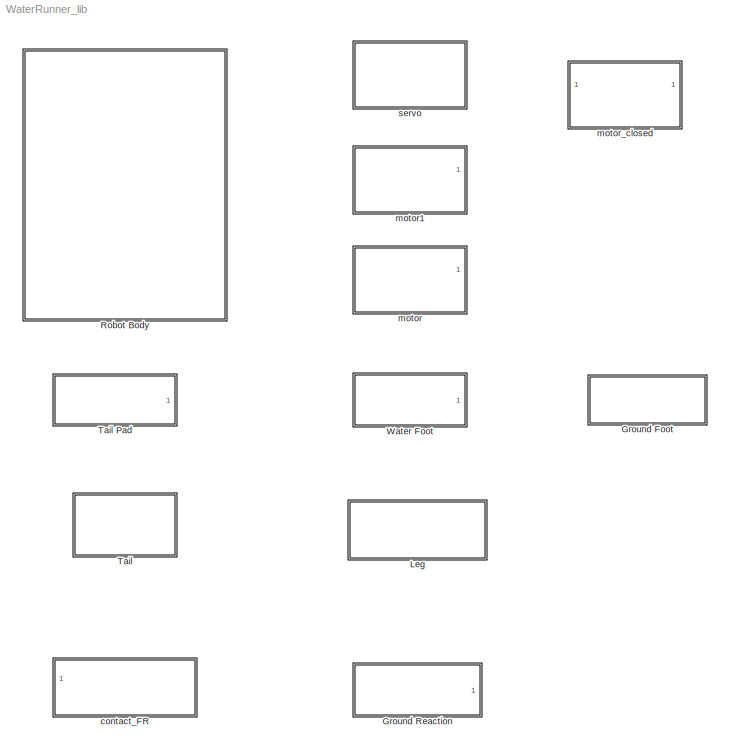
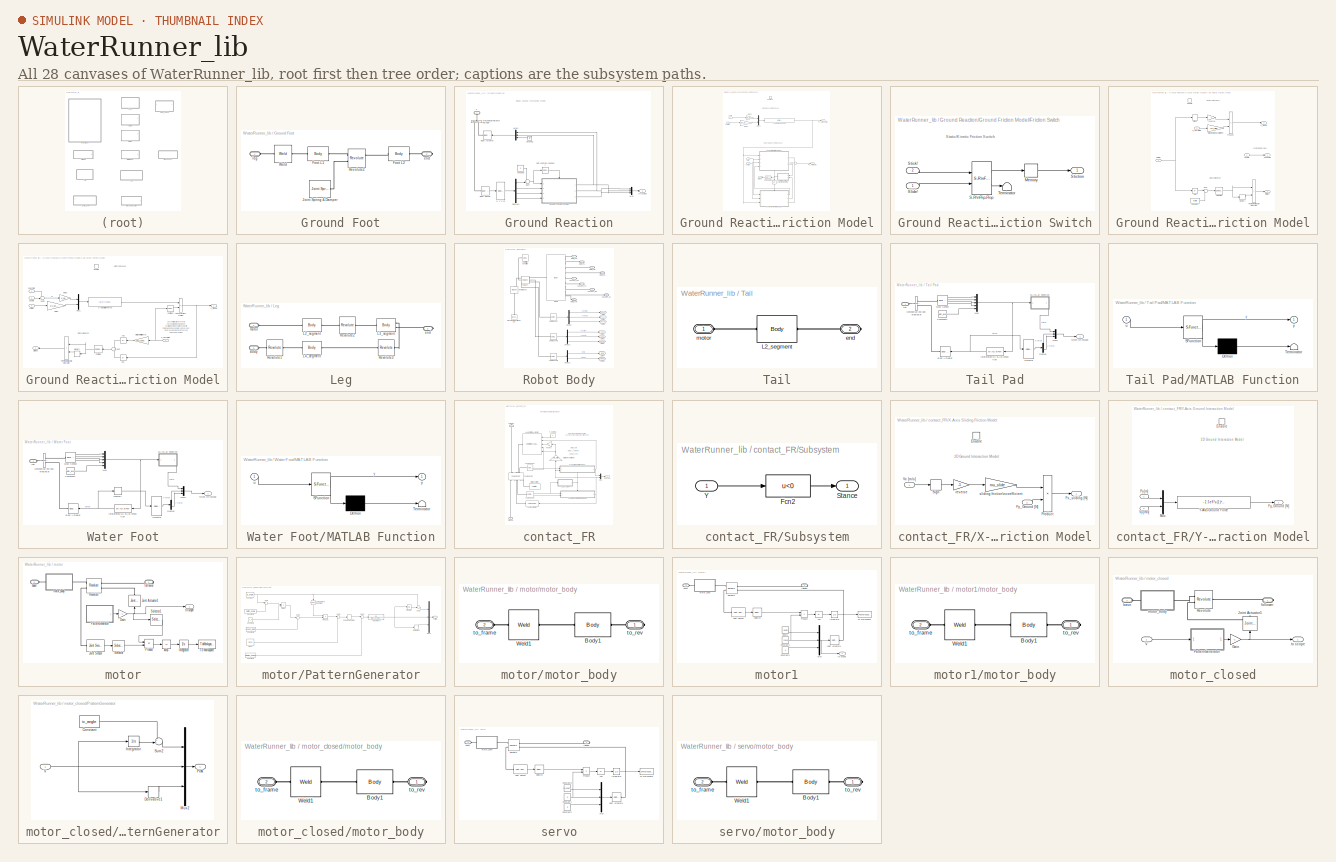
[diagram: thumbnail index - all 28 canvases of the model, root first then tree order]
MODEL WaterRunner_lib
KIND library
BLOCK [SubSystem] Ground Foot
  FunctionWithSeparateData = off
  MaskHideContents = off
  MinAlgLoopOccurrences = off
  Opaque = off
  Ports = [0, 0, 0, 0, 0, 1, 1]
  PropExecContextOutsideSubsystem = off
  RTWSystemCode = Auto
  RequestExecContextInheritance = off
  SID = 352
BLOCK [Reference] Ground Foot/Foot L1  REF=mblibv1/Bodies/Body
  AttachedToCS = CG
  BodyColor = [0 0 0]
  BodyColorSelMode = COLORPALETTE
  CG = Left$CG$Foot_L1_CG$CS1$CS1$m$[0 0 0]$Euler X-Y-Z$deg$CS1$false$none
  CGPos = Foot_L1_CG
  CGRot = [0 0 0]
  CS0Pos = []
  CS0Rot = []
  CS10Pos = []
  CS10Rot = []
  CS11Pos = []
  CS11Rot = []
  CS12Pos = []
  CS12Rot = []
  CS13Pos = []
  CS13Rot = []
  CS14Pos = []
  CS14Rot = []
  CS15Pos = []
  CS15Rot = []
  CS16Pos = []
  CS16Rot = []
  CS17Pos = []
  CS17Rot = []
  CS18Pos = []
  CS18Rot = []
  CS19Pos = []
  CS19Rot = []
  CS1Pos = Foot_L1_CS1
  CS1Rot = [0 0 0]
  CS20Pos = []
  CS20Rot = []
  CS2Pos = Foot_L1_CS2
  CS2Rot = [0 0 0]
  CS3Pos = []
  CS3Rot = []
  CS4Pos = []
  CS4Rot = []
  CS5Pos = []
  CS5Rot = []
  CS6Pos = []
  CS6Rot = []
  CS7Pos = []
  CS7Rot = []
  CS8Pos = []
  CS8Rot = []
  CS9Pos = []
  CS9Rot = []
  ClassName = Body
  Density = 1
  DensityUnits = kg/m^3
  DensityUse = false
  DialogClass = MechanicalBodyBlock
  GraphicsMode = CONVHULL
  Inertia = Foot_L1_inertia
  InertiaUnits = kg*m^2
  LConnTagsString = CS1
  Mass = Foot_L1_mass
  MassUnits = kg
  Ports = [0, 0, 0, 0, 0, 1, 1]
  RConnTagsString = CS2
  SID = 353
  Shape = Cylinder
  ShapeDims = [1 1]
  ShapeUnits = m
  ShapeUse = false
  SourceBlock = mblibv1/Bodies/Body
  SourceType = Body
  UpdateFromCAD = off
  WorkingFrames = Left$CS1$Foot_L1_CS1$Adjoining$Adjoining$m$[0 0 0]$Euler X-Y-Z$deg$Adjoining$true$none#Right$CS2$Foot_L1_CS2$CS1$CS1$m$[0 0 0]$Euler X-Y-Z$deg$CS1$true$none
BLOCK [Reference] Ground Foot/Foot L2  REF=mblibv1/Bodies/Body
  AttachedToCS = CG
  BodyColor = [0 0 0]
  BodyColorSelMode = COLORPALETTE
  CG = Left$CG$Foot_L2_CG$CS1$CS1$m$[0 0 0]$Euler X-Y-Z$rad$CS1$false$none
  CGPos = Foot_L2_CG
  CGRot = [0 0 0]
  CS0Pos = []
  CS0Rot = []
  CS10Pos = []
  CS10Rot = []
  CS11Pos = []
  CS11Rot = []
  CS12Pos = []
  CS12Rot = []
  CS13Pos = []
  CS13Rot = []
  CS14Pos = []
  CS14Rot = []
  CS15Pos = []
  CS15Rot = []
  CS16Pos = []
  CS16Rot = []
  CS17Pos = []
  CS17Rot = []
  CS18Pos = []
  CS18Rot = []
  CS19Pos = []
  CS19Rot = []
  CS1Pos = Foot_L2_CS1
  CS1Rot = [0 0 0]
  CS20Pos = []
  CS20Rot = []
  CS2Pos = Foot_L2_CS2
  CS2Rot = [0 0 0]
  CS3Pos = []
  CS3Rot = []
  CS4Pos = []
  CS4Rot = []
  CS5Pos = []
  CS5Rot = []
  CS6Pos = []
  CS6Rot = []
  CS7Pos = []
  CS7Rot = []
  CS8Pos = []
  CS8Rot = []
  CS9Pos = []
  CS9Rot = []
  ClassName = Body
  Density = 1
  DensityUnits = kg/m^3
  DensityUse = false
  DialogClass = MechanicalBodyBlock
  GraphicsMode = CONVHULL
  Inertia = Foot_L2_inertia
  InertiaUnits = kg*m^2
  LConnTagsString = CS1
  Mass = Foot_L2_mass
  MassUnits = kg
  Ports = [0, 0, 0, 0, 0, 1, 1]
  RConnTagsString = CS2
  SID = 354
  Shape = Cylinder
  ShapeDims = [1 1]
  ShapeUnits = m
  ShapeUse = false
  SourceBlock = mblibv1/Bodies/Body
  SourceType = Body
  UpdateFromCAD = off
  WorkingFrames = Left$CS1$Foot_L2_CS1$Adjoining$Adjoining$m$[0 0 0]$Euler X-Y-Z$rad$Adjoining$true$none#Right$CS2$Foot_L2_CS2$CS1$CS1$m$[0 0 0]$Euler X-Y-Z$rad$CS1$true$none
BLOCK [Reference] Ground Foot/Joint Spring & Damper  REF=mblibv1/Force \nElements/Joint Spring & Damper
  ClassName = JointSpringDamper
  DialogClass = JointSpringDamper
  JFEParameters = P1$false$0$0$0$m$m/s$N$deg$deg/s$N*m#P2$false$0$0$0$m$m/s$N$deg$deg/s$N*m#P3$false$0$0$0$m$m/s$N$deg$deg/s$N*m#R1$true$k_PRBM$b_PRBM$0$m$m/s$N$rad$rad/s$N*m#R2$false$0$0$0$m$m/s$N$deg$deg/s$N*m#R3$false$0$0$0$m$m/s$N$deg$deg/s$N*m#S$false$0$0$0$m$m/s$N$deg$deg/s$N*m
  Ports = [0, 0, 0, 0, 0, 1]
  SID = 372
  SourceBlock = mblibv1/Force \nElements/Joint Spring & Damper
  SourceType = Joint Spring & Damper
  UpdateFromCAD = off
BLOCK [Reference] Ground Foot/Revolute2  REF=mblibv1/Joints/Revolute
  ClassName = Joint
  CutJoint = off
  DialogClass = JointBlock
  LConnTagsString = __newl0|SA1
  MarkAsCut = off
  NumSAPorts = 2
  Ports = [0, 0, 0, 0, 0, 2, 2]
  PrimitiveProps = R1$World$[0 0 1]$revolute
  Primitives = prismatic
  R1Axis = [0 0 1]
  RConnTagsString = __newr0|SA1
  SID = 356
  SourceBlock = mblibv1/Joints/Revolute
  SourceType = Revolute
  UpdateFromCAD = off
BLOCK [Reference] Ground Foot/Weld  REF=mblibv1/Joints/Weld
  ClassName = Joint
  CutJoint = off
  DialogClass = JointBlock
  LConnTagsString = __newl0
  MarkAsCut = off
  NumSAPorts = 0
  Ports = [0, 0, 0, 0, 0, 1, 1]
  PrimitiveProps = W$World$[0 0 0]$weld
  Primitives = weld
  RConnTagsString = __newr0
  SID = 364
  SourceBlock = mblibv1/Joints/Weld
  SourceType = Weld
  UpdateFromCAD = off
  WAxis = [0 0 0]
BLOCK [PMIOPort] Ground Foot/end
  Port = 2
  SID = 358
  Side = Right
BLOCK [PMIOPort] Ground Foot/leg
  Port = 1
  SID = 357
  Side = Left
BLOCK [SubSystem] Ground Reaction
  FunctionWithSeparateData = off
  MaskHideContents = off
  MinAlgLoopOccurrences = off
  Opaque = off
  Ports = [0, 1, 0, 0, 0, 1]
  PropExecContextOutsideSubsystem = off
  RTWSystemCode = Auto
  RequestExecContextInheritance = off
  SID = 385
BLOCK [Reference] Ground Reaction/Body Actuator  REF=mblibv1/Sensors & \nActuators/Body Actuator
  AccelerationUnits = m/s^2
  ActiveIO = off
  ActuationStyle = Force
  Angle = off
  AngleUnits = deg
  ArcAccelerationUnits = deg/s^2
  ArcVelocityUnits = deg/s
  ClassName = BodyActuatorForceTorque
  CoordPosition = on
  CoordPositionUnits = m
  DialogClass = MechanicalActuatorBlock
  Force = on
  ForceUnits = N
  PhysicalDomain = Mechanical
  PortType = blob
  Ports = [1, 0, 0, 0, 0, 0, 1]
  ReferenceFrame = Absolute (World)
  SID = 386
  SourceBlock = mblibv1/Sensors & \nActuators/Body Actuator
  SourceType = Body Actuator
  Torque = off
  TorqueUnits = N-m
  UpdateFromCAD = off
  VelocityUnits = m/s
  Width = 3
BLOCK [Reference] Ground Reaction/Body Sensor  REF=mblibv1/Sensors & \nActuators/Body Sensor
  Acceleration = off
  AccelerationUnits = m/s^2
  ActiveIO = off
  Angle = on
  AngleUnits = deg
  ArcAcceleration = off
  ArcAccelerationUnits = deg/s^2
  ArcVelocity = off
  ArcVelocityUnits = deg/s
  ClassName = BodySensor
  CoordPosition = on
  CoordPositionUnits = m
  DialogClass = MechanicalSensorBlock
  Muxed = on
  OutputVector = [ 3 3 ]
  PhysicalDomain = Mechanical
  PortType = blob
  Ports = [0, 1, 0, 0, 0, 1]
  Pose = off
  Quaternion = on
  QuaternionDDT = off
  QuaternionDT = off
  QuaternionUnits = off
  ReferenceFrame = Absolute (World)
  SID = 387
  SourceBlock = mblibv1/Sensors & \nActuators/Body Sensor
  SourceType = Body Sensor
  UpdateFromCAD = off
  Velocity = on
  VelocityUnits = m/s
  Width = 6
BLOCK [Demux] Ground Reaction/Demux1
  DisplayOption = bar
  Ports = [1, 4]
  SID = 388
BLOCK [PMIOPort] Ground Reaction/F
  Port = 1
  SID = 469
  Side = Left
BLOCK [SubSystem] Ground Reaction/Ground Friction Model
  FunctionWithSeparateData = off
  MaskHideContents = off
  MinAlgLoopOccurrences = off
  Opaque = off
  Ports = [4, 3, 1]
  PropExecContextOutsideSubsystem = off
  RTWSystemCode = Auto
  RequestExecContextInheritance = off
  SID = 389
BLOCK [EnablePort] Ground Reaction/Ground Friction Model/Contact!
  Ports = []
  SID = 394
  StatesWhenEnabling = reset
BLOCK [DataTypeConversion] Ground Reaction/Ground Friction Model/Data Type Conversion
  OutDataTypeStr = double
  RndMeth = Floor
  SID = 395
  SaturateOnIntegerOverflow = off
BLOCK [SubSystem] Ground Reaction/Ground Friction Model/Friction Switch
  FunctionWithSeparateData = off
  MaskHideContents = off
  MinAlgLoopOccurrences = off
  Opaque = off
  Ports = [2, 1]
  PropExecContextOutsideSubsystem = off
  RTWSystemCode = Auto
  RequestExecContextInheritance = off
  SID = 396
BLOCK [Memory] Ground Reaction/Ground Friction Model/Friction Switch/Memory
  SID = 399
BLOCK [Reference] Ground Reaction/Ground Friction Model/Friction Switch/S-R\nFlip-Flop  REF=simulink_extras/Flip Flops/S-R\nFlip-Flop
  Ports = [2, 2]
  SID = 400
  SourceBlock = simulink_extras/Flip Flops/S-R\nFlip-Flop
  SourceType = SRFlipFlop
  initial_condition = 1
BLOCK [Inport] Ground Reaction/Ground Friction Model/Friction Switch/Slide!
  IconDisplay = Port number
  SID = 397
BLOCK [Inport] Ground Reaction/Ground Friction Model/Friction Switch/Stick!
  IconDisplay = Port number
  Port = 2
  SID = 398
BLOCK [Outport] Ground Reaction/Ground Friction Model/Friction Switch/Stiction
  IconDisplay = Port number
  SID = 402
BLOCK [Terminator] Ground Reaction/Ground Friction Model/Friction Switch/Terminator
  SID = 401
BLOCK [Outport] Ground Reaction/Ground Friction Model/Fx_Friction [N]
  AttributesFormatString = initial = '%<InitialOutput>'<path>'%<OutputWhenDisabled>'
  IconDisplay = Port number
  InitialOutput = 0
  OutputWhenDisabled = reset
  Port = 2
  SID = 457
BLOCK [Outport] Ground Reaction/Ground Friction Model/Fy_Ground[N]
  AttributesFormatString = initial = '%<InitialOutput>'\\nwhen disabled = '%<OutputWhenDisabled>'
  IconDisplay = Port number
  InitialOutput = 0
  OutputWhenDisabled = reset
  SID = 456
BLOCK [Gain] Ground Reaction/Ground Friction Model/Gain3
  Gain = k_gy
  OutDataTypeStr = Inherit: Inherit via internal rule
  ParamDataTypeStr = Inherit: Inherit via internal rule
  SID = 404
  SaturateOnIntegerOverflow = off
BLOCK [Gain] Ground Reaction/Ground Friction Model/Gain4
  Gain = 1/v_gy_max
  OutDataTypeStr = Inherit: Inherit via internal rule
  ParamDataTypeStr = Inherit: Inherit via internal rule
  SID = 405
  SaturateOnIntegerOverflow = off
BLOCK [Logic] Ground Reaction/Ground Friction Model/Logical\nOperator
  AllPortsSameDT = off
  Operator = NOT
  OutDataTypeStr = boolean
  Ports = [1, 1]
  SID = 406
BLOCK [Mux] Ground Reaction/Ground Friction Model/Mux1
  DisplayOption = bar
  Inputs = 2
  Ports = [2, 1]
  SID = 407
BLOCK [Outport] Ground Reaction/Ground Friction Model/Stiction!
  AttributesFormatString = initial = '%<InitialOutput>'<path>'%<OutputWhenDisabled>'
  IconDisplay = Port number
  InitialOutput = 0
  OutputWhenDisabled = reset
  Port = 3
  SID = 458
BLOCK [Sum] Ground Reaction/Ground Friction Model/Sum1
  IconShape = round
  InputSameDT = off
  OutDataTypeStr = Inherit: Inherit via internal rule
  Ports = [2, 1]
  SID = 408
  SaturateOnIntegerOverflow = off
BLOCK [SubSystem] Ground Reaction/Ground Friction Model/X-Axis Kinetic Friction Model
  FunctionWithSeparateData = off
  MaskHideContents = off
  MinAlgLoopOccurrences = off
  Opaque = off
  Ports = [3, 3, 1]
  PropExecContextOutsideSubsystem = off
  RTWSystemCode = Auto
  RequestExecContextInheritance = off
  SID = 409
BLOCK [Abs] Ground Reaction/Ground Friction Model/X-Axis Kinetic Friction Model/Abs
  SID = 414
  SaturateOnIntegerOverflow = off
BLOCK [Constant] Ground Reaction/Ground Friction Model/X-Axis Kinetic Friction Model/Constant
  SID = 415
  Value = vLimit
BLOCK [EnablePort] Ground Reaction/Ground Friction Model/X-Axis Kinetic Friction Model/Enable
  Ports = []
  SID = 413
  StatesWhenEnabling = reset
  ZeroCross = off
BLOCK [Inport] Ground Reaction/Ground Friction Model/X-Axis Kinetic Friction Model/F_Normal [N]
  IconDisplay = Port number
  Port = 3
  SID = 412
BLOCK [Outport] Ground Reaction/Ground Friction Model/X-Axis Kinetic Friction Model/F_Slide [N]
  AttributesFormatString = initial = '%<InitialOutput>'\\nwhen disabled = '%<OutputWhenDisabled>'
  IconDisplay = Port number
  InitialOutput = 0
  OutputWhenDisabled = reset
  Port = 3
  SID = 426
BLOCK [RelationalOperator] Ground Reaction/Ground Friction Model/X-Axis Kinetic Friction Model/FixPt\nRelational\nOperator
  InputSameDT = off
  Operator = >
  OutDataTypeStr = boolean
  Ports = [2, 1]
  SID = 416
  ZeroCross = off
BLOCK [Memory] Ground Reaction/Ground Friction Model/X-Axis Kinetic Friction Model/Memory
  SID = 417
BLOCK [Reference] Ground Reaction/Ground Friction Model/X-Axis Kinetic Friction Model/Negative  REF=simulink/Logic and Bit\nOperations/Compare\nTo Zero
  OutDataTypeStr = boolean
  Ports = [1, 1]
  SID = 418
  SourceBlock = simulink/Logic and Bit\nOperations/Compare\nTo Zero
  SourceType = Compare To Zero
  ZeroCross = on
  relop = <
BLOCK [Product] Ground Reaction/Ground Friction Model/X-Axis Kinetic Friction Model/Product
  InputSameDT = off
  OutDataTypeStr = Inherit: Inherit via internal rule
  Ports = [2, 1]
  SID = 419
  SaturateOnIntegerOverflow = off
BLOCK [Signum] Ground Reaction/Ground Friction Model/X-Axis Kinetic Friction Model/Sign1
  SID = 420
BLOCK [Outport] Ground Reaction/Ground Friction Model/X-Axis Kinetic Friction Model/Stiction!
  AttributesFormatString = initial = '%<InitialOutput>'\\nwhen disabled = '%<OutputWhenDisabled>'
  IconDisplay = Port number
  InitialOutput = 0
  OutputWhenDisabled = reset
  Port = 2
  SID = 425
BLOCK [Sum] Ground Reaction/Ground Friction Model/X-Axis Kinetic Friction Model/Sum
  IconShape = round
  InputSameDT = off
  Inputs = |+-
  OutDataTypeStr = Inherit: Inherit via internal rule
  Ports = [2, 1]
  SID = 421
  SaturateOnIntegerOverflow = off
BLOCK [Inport] Ground Reaction/Ground Friction Model/X-Axis Kinetic Friction Model/pos [m]
  IconDisplay = Port number
  SID = 410
BLOCK [Outport] Ground Reaction/Ground Friction Model/X-Axis Kinetic Friction Model/posFP [m]
  AttributesFormatString = initial = '%<InitialOutput>'\\nwhen disabled = '%<OutputWhenDisabled>'
  IconDisplay = Port number
  InitialOutput = 0
  SID = 424
BLOCK [Gain] Ground Reaction/Ground Friction Model/X-Axis Kinetic Friction Model/reverse
  Gain = -1
  OutDataTypeStr = Inherit: Inherit via internal rule
  ParamDataTypeStr = Inherit: Inherit via internal rule
  SID = 422
  SaturateOnIntegerOverflow = off
BLOCK [Gain] Ground Reaction/Ground Friction Model/X-Axis Kinetic Friction Model/sliding friction\ncoefficient
  Gain = mu_slide
  OutDataTypeStr = Inherit: Inherit via internal rule
  ParamDataTypeStr = Inherit: Inherit via internal rule
  SID = 423
  SaturateOnIntegerOverflow = off
BLOCK [Inport] Ground Reaction/Ground Friction Model/X-Axis Kinetic Friction Model/vel [m//s]
  IconDisplay = Port number
  Port = 2
  SID = 411
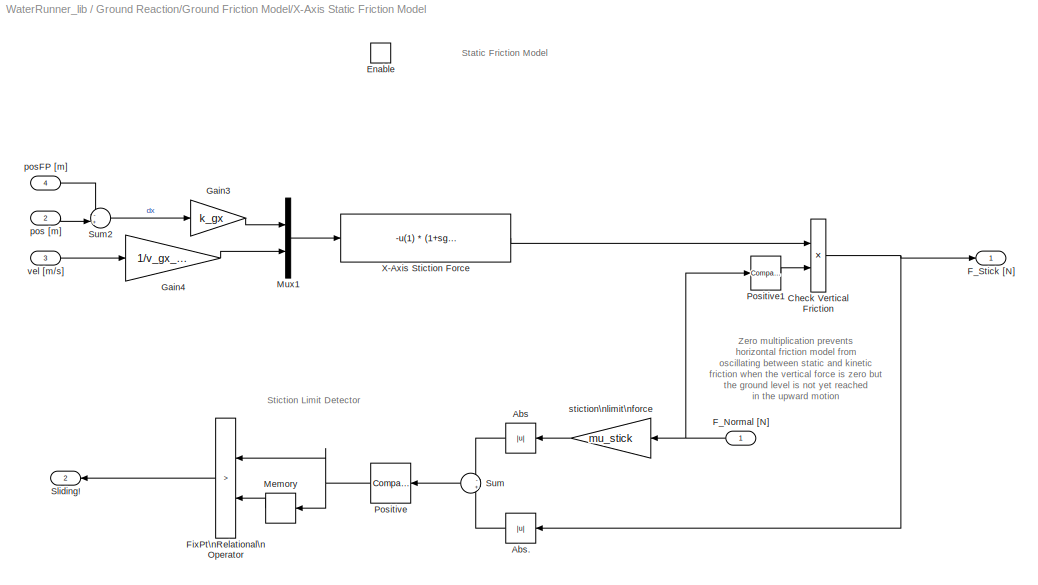
BLOCK [SubSystem] Ground Reaction/Ground Friction Model/X-Axis Static Friction Model
  FunctionWithSeparateData = off
  MaskHideContents = off
  MinAlgLoopOccurrences = off
  Opaque = off
  Ports = [4, 2, 1]
  PropExecContextOutsideSubsystem = off
  RTWSystemCode = Auto
  RequestExecContextInheritance = off
  SID = 430
BLOCK [Abs] Ground Reaction/Ground Friction Model/X-Axis Static Friction Model/Abs
  SID = 436
  SaturateOnIntegerOverflow = off
BLOCK [Abs] Ground Reaction/Ground Friction Model/X-Axis Static Friction Model/Abs.
  SID = 437
  SaturateOnIntegerOverflow = off
BLOCK [Product] Ground Reaction/Ground Friction Model/X-Axis Static Friction Model/Check Vertical Friction
  InputSameDT = off
  OutDataTypeStr = Inherit: Inherit via internal rule
  Ports = [2, 1]
  SID = 438
  SaturateOnIntegerOverflow = off
BLOCK [EnablePort] Ground Reaction/Ground Friction Model/X-Axis Static Friction Model/Enable
  Ports = []
  SID = 435
  StatesWhenEnabling = reset
  ZeroCross = off
BLOCK [Inport] Ground Reaction/Ground Friction Model/X-Axis Static Friction Model/F_Normal [N]
  IconDisplay = Port number
  SID = 431
BLOCK [Outport] Ground Reaction/Ground Friction Model/X-Axis Static Friction Model/F_Stick [N]
  AttributesFormatString = when disabled: %<OutputWhenDisabled>\\ninitial: %<InitialOutput>
  IconDisplay = Port number
  InitialOutput = 0
  OutputWhenDisabled = reset
  SID = 450
BLOCK [RelationalOperator] Ground Reaction/Ground Friction Model/X-Axis Static Friction Model/FixPt\nRelational\nOperator
  InputSameDT = off
  Operator = >
  OutDataTypeStr = boolean
  Ports = [2, 1]
  SID = 439
  ZeroCross = off
BLOCK [Gain] Ground Reaction/Ground Friction Model/X-Axis Static Friction Model/Gain3
  Gain = k_gx
  OutDataTypeStr = Inherit: Inherit via internal rule
  ParamDataTypeStr = Inherit: Inherit via internal rule
  SID = 440
  SaturateOnIntegerOverflow = off
BLOCK [Gain] Ground Reaction/Ground Friction Model/X-Axis Static Friction Model/Gain4
  Gain = 1/v_gx_max
  OutDataTypeStr = Inherit: Inherit via internal rule
  ParamDataTypeStr = Inherit: Inherit via internal rule
  SID = 441
  SaturateOnIntegerOverflow = off
BLOCK [Memory] Ground Reaction/Ground Friction Model/X-Axis Static Friction Model/Memory
  SID = 442
BLOCK [Mux] Ground Reaction/Ground Friction Model/X-Axis Static Friction Model/Mux1
  DisplayOption = bar
  Inputs = 2
  Ports = [2, 1]
  SID = 443
BLOCK [Reference] Ground Reaction/Ground Friction Model/X-Axis Static Friction Model/Positive  REF=simulink/Logic and Bit\nOperations/Compare\nTo Zero
  OutDataTypeStr = boolean
  Ports = [1, 1]
  SID = 444
  SourceBlock = simulink/Logic and Bit\nOperations/Compare\nTo Zero
  SourceType = Compare To Zero
  ZeroCross = on
  relop = >
BLOCK [Reference] Ground Reaction/Ground Friction Model/X-Axis Static Friction Model/Positive1  REF=simulink/Logic and Bit\nOperations/Compare\nTo Zero
  OutDataTypeStr = boolean
  Ports = [1, 1]
  SID = 445
  SourceBlock = simulink/Logic and Bit\nOperations/Compare\nTo Zero
  SourceType = Compare To Zero
  ZeroCross = on
  relop = >
BLOCK [Outport] Ground Reaction/Ground Friction Model/X-Axis Static Friction Model/Sliding!
  AttributesFormatString = when disabled: %<OutputWhenDisabled>\\ninitial: %<InitialOutput>
  IconDisplay = Port number
  InitialOutput = 0
  OutputWhenDisabled = reset
  Port = 2
  SID = 451
BLOCK [Sum] Ground Reaction/Ground Friction Model/X-Axis Static Friction Model/Sum
  IconShape = round
  InputSameDT = off
  Inputs = -+
  OutDataTypeStr = Inherit: Inherit via internal rule
  Ports = [2, 1]
  SID = 446
  SaturateOnIntegerOverflow = off
BLOCK [Sum] Ground Reaction/Ground Friction Model/X-Axis Static Friction Model/Sum2
  IconShape = round
  InputSameDT = off
  Inputs = -+|
  OutDataTypeStr = Inherit: Inherit via internal rule
  Ports = [2, 1]
  SID = 447
  SaturateOnIntegerOverflow = off
BLOCK [Fcn] Ground Reaction/Ground Friction Model/X-Axis Static Friction Model/X-Axis Stiction Force
  Expr = -u(1) * (1+sgn(u(1))*u(2))
  SID = 448
BLOCK [Inport] Ground Reaction/Ground Friction Model/X-Axis Static Friction Model/pos [m]
  IconDisplay = Port number
  Port = 2
  SID = 432
BLOCK [Inport] Ground Reaction/Ground Friction Model/X-Axis Static Friction Model/posFP [m]
  IconDisplay = Port number
  Port = 4
  SID = 434
BLOCK [Gain] Ground Reaction/Ground Friction Model/X-Axis Static Friction Model/stiction\nlimit\nforce
  Gain = mu_stick
  OutDataTypeStr = Inherit: Inherit via internal rule
  ParamDataTypeStr = Inherit: Inherit via internal rule
  SID = 449
  SaturateOnIntegerOverflow = off
BLOCK [Inport] Ground Reaction/Ground Friction Model/X-Axis Static Friction Model/vel [m//s]
  IconDisplay = Port number
  Port = 3
  SID = 433
BLOCK [Fcn] Ground Reaction/Ground Friction Model/Y-Axis Ground Force
  Expr = - u(1)  *  (1-u(2)) * (u(2)<1)
  SID = 455
BLOCK [Inport] Ground Reaction/Ground Friction Model/dy [m]
  IconDisplay = Port number
  SID = 390
BLOCK [Inport] Ground Reaction/Ground Friction Model/vx [m//s]
  IconDisplay = Port number
  Port = 4
  SID = 393
BLOCK [Inport] Ground Reaction/Ground Friction Model/vy [m//s]
  IconDisplay = Port number
  Port = 2
  SID = 391
BLOCK [Inport] Ground Reaction/Ground Friction Model/x [m]
  IconDisplay = Port number
  Port = 3
  SID = 392
BLOCK [Ground] Ground Reaction/Ground1
  SID = 461
BLOCK [Reference] Ground Reaction/Mechanical\nBranching\nBar  REF=mblibv1/Utilities/Mechanical\nBranching\nBar
  ClassName = BranchingBar
  DialogClass = MechanicalBranchingBarBlock
  LConnTagsString = _newl0
  NumSAPorts = 2
  Ports = [0, 0, 0, 0, 0, 1, 2]
  RConnTagsString = SA0|SA1
  SID = 462
  SourceBlock = mblibv1/Utilities/Mechanical\nBranching\nBar
  SourceType = Mechanical Branching Bar
  UpdateFromCAD = off
BLOCK [Mux] Ground Reaction/Mux
  DisplayOption = bar
  Inputs = 3
  Ports = [3, 1]
  SID = 478
BLOCK [Mux] Ground Reaction/Mux1
  DisplayOption = bar
  Inputs = 3
  Ports = [3, 1]
  SID = 463
BLOCK [Sum] Ground Reaction/Sum
  IconShape = round
  InputSameDT = off
  Inputs = -+|
  OutDataTypeStr = Inherit: Inherit via internal rule
  Ports = [2, 1]
  SID = 464
  SaturateOnIntegerOverflow = off
BLOCK [Selector] Ground Reaction/[y y' x x']
  IndexOptions = Index vector (dialog)
  Indices = [2 5 1 4]
  InputPortWidth = 6
  OutputSizes = 1
  Ports = [1, 1]
  SID = 466
BLOCK [Reference] Ground Reaction/skin contact\nsensor  REF=simulink/Logic and Bit\nOperations/Compare\nTo Zero
  OutDataTypeStr = boolean
  Ports = [1, 1]
  SID = 467
  SourceBlock = simulink/Logic and Bit\nOperations/Compare\nTo Zero
  SourceType = Compare To Zero
  ZeroCross = on
  relop = <=
BLOCK [Outport] Ground Reaction/to scope
  IconDisplay = Port number
  SID = 479
BLOCK [Constant] Ground Reaction/yGround
  SID = 468
  Value = 0
BLOCK [SubSystem] Leg
  FunctionWithSeparateData = off
  MaskHideContents = off
  MinAlgLoopOccurrences = off
  Opaque = off
  Ports = [0, 0, 0, 0, 0, 2, 1]
  PropExecContextOutsideSubsystem = off
  RTWSystemCode = Auto
  RequestExecContextInheritance = off
  SID = 42
BLOCK [Reference] Leg/L2_segment  REF=mblibv1/Bodies/Body
  AttachedToCS = CG
  BodyColor = [0 0 0]
  BodyColorSelMode = COLORPALETTE
  CG = Left$CG$L2_CG$CS1$CS1$m$[0 0 0]$Euler X-Y-Z$deg$WORLD$false$none
  CGPos = L2_CG
  CGRot = [0 0 0]
  CS0Pos = []
  CS0Rot = []
  CS10Pos = []
  CS10Rot = []
  CS11Pos = []
  CS11Rot = []
  CS12Pos = []
  CS12Rot = []
  CS13Pos = []
  CS13Rot = []
  CS14Pos = []
  CS14Rot = []
  CS15Pos = []
  CS15Rot = []
  CS16Pos = []
  CS16Rot = []
  CS17Pos = []
  CS17Rot = []
  CS18Pos = []
  CS18Rot = []
  CS19Pos = []
  CS19Rot = []
  CS1Pos = L2_CS1
  CS1Rot = [0 0 0]
  CS20Pos = []
  CS20Rot = []
  CS2Pos = L2_CS2
  CS2Rot = [0 0 0]
  CS3Pos = []
  CS3Rot = []
  CS4Pos = []
  CS4Rot = []
  CS5Pos = []
  CS5Rot = []
  CS6Pos = []
  CS6Rot = []
  CS7Pos = []
  CS7Rot = []
  CS8Pos = []
  CS8Rot = []
  CS9Pos = []
  CS9Rot = []
  ClassName = Body
  Density = 1
  DensityUnits = kg/m^3
  DensityUse = false
  DialogClass = MechanicalBodyBlock
  GraphicsMode = CONVHULL
  Inertia = L2_inertia
  InertiaUnits = kg*m^2
  LConnTagsString = CS1
  Mass = L2_mass
  MassUnits = kg
  Ports = [0, 0, 0, 0, 0, 1, 1]
  RConnTagsString = CS2
  SID = 43
  Shape = Cylinder
  ShapeDims = [1 1]
  ShapeUnits = m
  ShapeUse = false
  SourceBlock = mblibv1/Bodies/Body
  SourceType = Body
  UpdateFromCAD = off
  WorkingFrames = Left$CS1$L2_CS1$Adjoining$Adjoining$m$[0 0 0]$Euler X-Y-Z$deg$WORLD$true$none#Right$CS2$L2_CS2$CS1$CS1$m$[0 0 0]$Euler X-Y-Z$deg$WORLD$true$none
BLOCK [Reference] Leg/L3_segment  REF=mblibv1/Bodies/Body
  AttachedToCS = CG
  BodyColor = [0 0 0]
  BodyColorSelMode = COLORPALETTE
  CG = Left$CG$L3_CG$CS1$CS1$m$[0 0 0]$Euler X-Y-Z$rad$CS1$false$none
  CGPos = L3_CG
  CGRot = [0 0 0]
  CS0Pos = []
  CS0Rot = []
  CS10Pos = []
  CS10Rot = []
  CS11Pos = []
  CS11Rot = []
  CS12Pos = []
  CS12Rot = []
  CS13Pos = []
  CS13Rot = []
  CS14Pos = []
  CS14Rot = []
  CS15Pos = []
  CS15Rot = []
  CS16Pos = []
  CS16Rot = []
  CS17Pos = []
  CS17Rot = []
  CS18Pos = []
  CS18Rot = []
  CS19Pos = []
  CS19Rot = []
  CS1Pos = L3_CS1
  CS1Rot = L3_ori
  CS20Pos = []
  CS20Rot = []
  CS2Pos = L3_CS2
  CS2Rot = [0 0 0]
  CS3Pos = L3_CS3
  CS3Rot = [0 0 0]
  CS4Pos = []
  CS4Rot = []
  CS5Pos = []
  CS5Rot = []
  CS6Pos = []
  CS6Rot = []
  CS7Pos = []
  CS7Rot = []
  CS8Pos = []
  CS8Rot = []
  CS9Pos = []
  CS9Rot = []
  ClassName = Body
  Density = 1
  DensityUnits = kg/m^3
  DensityUse = false
  DialogClass = MechanicalBodyBlock
  GraphicsMode = CONVHULL
  Inertia = L3_inertia
  InertiaUnits = kg*m^2
  LConnTagsString = CS1
  Mass = L3_mass
  MassUnits = kg
  Ports = [0, 0, 0, 0, 0, 1, 2]
  RConnTagsString = CS2|CS3
  SID = 44
  Shape = Cylinder
  ShapeDims = [1 1]
  ShapeUnits = m
  ShapeUse = false
  SourceBlock = mblibv1/Bodies/Body
  SourceType = Body
  UpdateFromCAD = off
  WorkingFrames = Left$CS1$L3_CS1$Adjoining$Adjoining$m$L3_ori$Euler X-Y-Z$rad$Adjoining$true$none#Right$CS2$L3_CS2$CS1$CS1$m$[0 0 0]$Euler X-Y-Z$rad$CS1$true$none#Right$CS3$L3_CS3$CS1$CS1$m$[0 0 0]$Euler X-Y-Z$rad$CS1$true$none
BLOCK [Reference] Leg/L4_segment  REF=mblibv1/Bodies/Body
  AttachedToCS = CG
  BodyColor = [0 0 0]
  BodyColorSelMode = COLORPALETTE
  CG = Left$CG$L4_CG$CS1$CS1$m$[0 0 0]$Euler X-Y-Z$rad$CS1$false$none
  CGPos = L4_CG
  CGRot = [0 0 0]
  CS0Pos = []
  CS0Rot = []
  CS10Pos = []
  CS10Rot = []
  CS11Pos = []
  CS11Rot = []
  CS12Pos = []
  CS12Rot = []
  CS13Pos = []
  CS13Rot = []
  CS14Pos = []
  CS14Rot = []
  CS15Pos = []
  CS15Rot = []
  CS16Pos = []
  CS16Rot = []
  CS17Pos = []
  CS17Rot = []
  CS18Pos = []
  CS18Rot = []
  CS19Pos = []
  CS19Rot = []
  CS1Pos = L4_CS1
  CS1Rot = L4_ori
  CS20Pos = []
  CS20Rot = []
  CS2Pos = L4_CS2
  CS2Rot = [0 0 0]
  CS3Pos = []
  CS3Rot = []
  CS4Pos = []
  CS4Rot = []
  CS5Pos = []
  CS5Rot = []
  CS6Pos = []
  CS6Rot = []
  CS7Pos = []
  CS7Rot = []
  CS8Pos = []
  CS8Rot = []
  CS9Pos = []
  CS9Rot = []
  ClassName = Body
  Density = 1
  DensityUnits = kg/m^3
  DensityUse = false
  DialogClass = MechanicalBodyBlock
  GraphicsMode = CONVHULL
  Inertia = L4_inertia
  InertiaUnits = kg*m^2
  LConnTagsString = CS1
  Mass = L4_mass
  MassUnits = kg
  Ports = [0, 0, 0, 0, 0, 1, 1]
  RConnTagsString = CS2
  SID = 45
  Shape = Cylinder
  ShapeDims = [1 1]
  ShapeUnits = m
  ShapeUse = false
  SourceBlock = mblibv1/Bodies/Body
  SourceType = Body
  UpdateFromCAD = off
  WorkingFrames = Left$CS1$L4_CS1$Adjoining$Adjoining$m$L4_ori$Euler X-Y-Z$rad$Adjoining$true$none#Right$CS2$L4_CS2$CS1$CS1$m$[0 0 0]$Euler X-Y-Z$rad$CS1$true$none
BLOCK [Reference] Leg/Revolute1  REF=mblibv1/Joints/Revolute
  ClassName = Joint
  CutJoint = off
  DialogClass = JointBlock
  LConnTagsString = __newl0
  MarkAsCut = off
  NumSAPorts = 0
  Ports = [0, 0, 0, 0, 0, 1, 1]
  PrimitiveProps = R1$World$[0 0 1]$revolute
  Primitives = prismatic
  R1Axis = [0 0 1]
  RConnTagsString = __newr0
  SID = 46
  SourceBlock = mblibv1/Joints/Revolute
  SourceType = Revolute
  UpdateFromCAD = off
BLOCK [Reference] Leg/Revolute2  REF=mblibv1/Joints/Revolute
  ClassName = Joint
  CutJoint = on
  DialogClass = JointBlock
  LConnTagsString = __newl0
  MarkAsCut = off
  NumSAPorts = 0
  Ports = [0, 0, 0, 0, 0, 1, 1]
  PrimitiveProps = R1$World$[0 0 1]$revolute
  Primitives = prismatic
  R1Axis = [0 0 1]
  RConnTagsString = __newr0
  SID = 47
  SourceBlock = mblibv1/Joints/Revolute
  SourceType = Revolute
  UpdateFromCAD = off
BLOCK [Reference] Leg/Revolute3  REF=mblibv1/Joints/Revolute
  ClassName = Joint
  CutJoint = off
  DialogClass = JointBlock
  LConnTagsString = __newl0
  MarkAsCut = off
  NumSAPorts = 0
  Ports = [0, 0, 0, 0, 0, 1, 1]
  PrimitiveProps = R1$World$[0 0 1]$revolute
  Primitives = prismatic
  R1Axis = [0 0 1]
  RConnTagsString = __newr0
  SID = 48
  SourceBlock = mblibv1/Joints/Revolute
  SourceType = Revolute
  UpdateFromCAD = off
BLOCK [PMIOPort] Leg/body
  Port = 3
  SID = 51
  Side = Left
BLOCK [PMIOPort] Leg/end
  Port = 2
  SID = 50
  Side = Right
BLOCK [PMIOPort] Leg/motor
  Port = 1
  SID = 49
  Side = Left
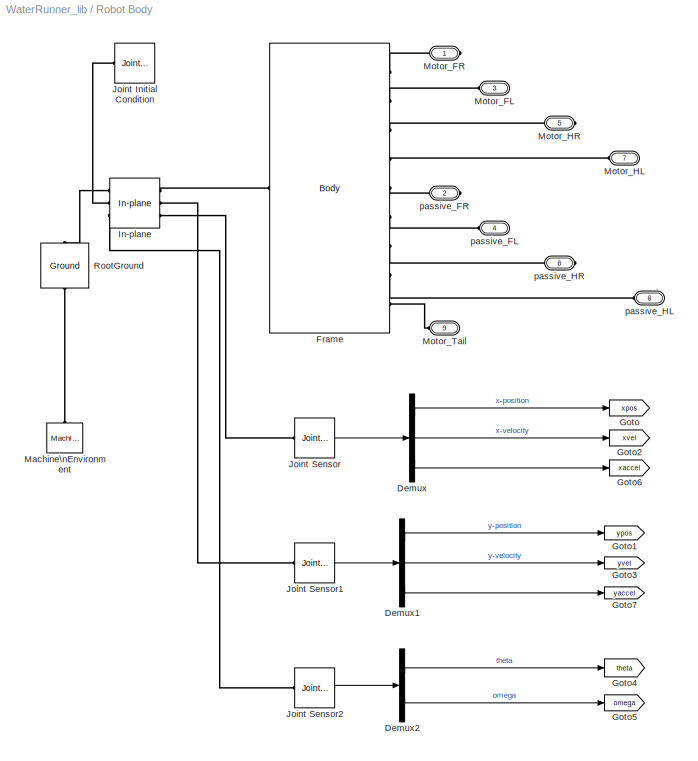
BLOCK [SubSystem] Robot Body
  FunctionWithSeparateData = off
  MaskHideContents = off
  MinAlgLoopOccurrences = off
  Opaque = off
  Ports = [0, 0, 0, 0, 0, 5, 4]
  PropExecContextOutsideSubsystem = off
  RTWSystemCode = Auto
  RequestExecContextInheritance = off
  SID = 127
BLOCK [Demux] Robot Body/Demux
  DisplayOption = bar
  Outputs = 3
  Ports = [1, 3]
  SID = 128
BLOCK [Demux] Robot Body/Demux1
  DisplayOption = bar
  Outputs = 3
  Ports = [1, 3]
  SID = 129
BLOCK [Demux] Robot Body/Demux2
  DisplayOption = bar
  Outputs = 2
  Ports = [1, 2]
  SID = 295
BLOCK [Reference] Robot Body/Frame  REF=mblibv1/Bodies/Body
  AttachedToCS = CG
  BodyColor = [0 0 1]
  BodyColorSelMode = COLORPALETTE
  CG = Left$CG$frame_CG$WORLD$WORLD$m$[0 0 0]$Euler X-Y-Z$deg$WORLD$false$none
  CGPos = frame_CG
  CGRot = [0 0 0]
  CS0Pos = []
  CS0Rot = []
  CS10Pos = frame_passive_FR
  CS10Rot = [0 0 0]
  CS11Pos = frame_passive_FL
  CS11Rot = [0 0 0]
  CS12Pos = frame_passive_HR
  CS12Rot = [0 0 0]
  CS13Pos = frame_passive_HL
  CS13Rot = [0 0 0]
  CS14Pos = frame_motor_Tail
  CS14Rot = [0 0 0]
  CS15Pos = []
  CS15Rot = []
  CS16Pos = []
  CS16Rot = []
  CS17Pos = []
  CS17Rot = []
  CS18Pos = []
  CS18Rot = []
  CS19Pos = []
  CS19Rot = []
  CS1Pos = frame_CA
  CS1Rot = [0 0 0]
  CS20Pos = []
  CS20Rot = []
  CS2Pos = frame_FR
  CS2Rot = [0 0 0]
  CS3Pos = frame_HR
  CS3Rot = [0 0 0]
  CS4Pos = frame_FL
  CS4Rot = [0 0 0]
  CS5Pos = frame_HL
  CS5Rot = [0 0 0]
  CS6Pos = frame_motor_FR
  CS6Rot = [0 0 0]
  CS7Pos = frame_motor_FL
  CS7Rot = [0 0 0]
  CS8Pos = frame_motor_HR
  CS8Rot = [0 0 0]
  CS9Pos = frame_motor_HL
  CS9Rot = [0 0 0]
  ClassName = Body
  Density = 1
  DensityUnits = kg/m^3
  DensityUse = false
  DialogClass = MechanicalBodyBlock
  GraphicsMode = CONVHULL
  Inertia = frame_inertia
  InertiaUnits = kg*m^2
  LConnTagsString = CS1
  Mass = frame_mass
  MassUnits = kg
  Ports = [0, 0, 0, 0, 0, 1, 9]
  RConnTagsString = CS6|CS7|CS8|CS9|CS10|CS11|CS12|CS13|CS14
  SID = 130
  Shape = Cylinder
  ShapeDims = [1 1]
  ShapeUnits = m
  ShapeUse = false
  SourceBlock = mblibv1/Bodies/Body
  SourceType = Body
  UpdateFromCAD = off
  WorkingFrames = Left$CS1$frame_CA$World$World$m$[0 0 0]$Euler X-Y-Z$deg$WORLD$true$none#Right$CS2$frame_FR$World$World$m$[0 0 0]$Euler X-Y-Z$deg$WORLD$false$none#Right$CS4$frame_FL$World$World$m$[0 0 0]$Euler X-Y-Z$deg$WORLD$false$none#Right$CS3$frame_HR$World$World$m$[0 0 0]$Euler X-Y-Z$deg$WORLD$false$none#Right$CS5$frame_HL$WORLD$WORLD$m$[0 0 0]$Euler X-Y-Z$deg$WORLD$false$none#Right$CS6$frame_motor_FR$WORLD$W...<+693ch>
BLOCK [Goto] Robot Body/Goto
  GotoTag = xpos
  SID = 131
  TagVisibility = global
BLOCK [Goto] Robot Body/Goto1
  GotoTag = ypos
  SID = 132
  TagVisibility = global
BLOCK [Goto] Robot Body/Goto2
  GotoTag = xvel
  SID = 133
  TagVisibility = global
BLOCK [Goto] Robot Body/Goto3
  GotoTag = yvel
  SID = 134
  TagVisibility = global
BLOCK [Goto] Robot Body/Goto4
  GotoTag = theta
  SID = 296
  TagVisibility = global
BLOCK [Goto] Robot Body/Goto5
  GotoTag = omega
  SID = 297
  TagVisibility = global
BLOCK [Goto] Robot Body/Goto6
  GotoTag = xaccel
  SID = 494
  TagVisibility = global
BLOCK [Goto] Robot Body/Goto7
  GotoTag = yaccel
  SID = 495
  TagVisibility = global
BLOCK [Reference] Robot Body/In-plane  REF=mblibv1/Joints/In-plane
  ClassName = InplaneJoint
  CutJoint = off
  DialogClass = JointBlock
  LConnTagsString = __newl0|SA1|SA2
  MarkAsCut = off
  NumSAPorts = 4
  P1Axis = [1 0 0]
  P2Axis = [0 1 0]
  Ports = [0, 0, 0, 0, 0, 3, 3]
  PrimitiveProps = P1$World$[1 0 0]$prismatic#P2$World$[0 1 0]$prismatic
  Primitives = prismatic
  RConnTagsString = __newr0|SA1|SA2
  SID = 527
  SourceBlock = mblibv1/Joints/In-plane
  SourceType = In-plane
  UpdateFromCAD = off
BLOCK [Reference] Robot Body/Joint Initial Condition  REF=mblibv1/Sensors & \nActuators/Joint Initial Condition
  ClassName = InitialCondition
  DialogClass = InitialConditionBlock
  InitialConditions = P1$true$0$m$deg$0$m/s$deg/s#P2$false$initRobHeight$m$deg$0$m/s$deg/s#P3$false$0$m$deg$0$m/s$deg/s#R1$false$0$m$rad$0$m/s$rad/s#R2$false$0$m$deg$0$m/s$deg/s#R3$false$0$m$deg$0$m/s$deg/s#S$false$0$m$deg$0$m/s$deg/s
  LeftPortType = blob
  P1PIC = 0
  P1VIC = 0
  P2PIC = 0
  P2VIC = 0
  P3PIC = 0
  P3VIC = 0
  PhysicalDomain = mechanical
  Ports = [0, 0, 0, 0, 0, 0, 1]
  R1PIC = 0
  R1VIC = 0
  R2PIC = 0
  R2VIC = 0
  R3PIC = 0
  R3VIC = 0
  RightPortType = blob
  SID = 136
  SPIC = 0
  SVIC = 0
  SourceBlock = mblibv1/Sensors & \nActuators/Joint Initial Condition
  SourceType = Joint Initial Condition
  UpdateFromCAD = off
BLOCK [Reference] Robot Body/Joint Sensor  REF=mblibv1/Sensors & \nActuators/Joint Sensor
  Acceleration = on
  AccelerationUnits = m/s^2
  ActiveIO = off
  Angle = on
  AngleUnits = deg
  ArcAcceleration = off
  ArcAccelerationUnits = deg/s^2
  ArcVelocity = off
  ArcVelocityUnits = deg/s
  ClassName = JointSensor
  CoordPosition = on
  CoordPositionUnits = m
  DialogClass = MechanicalSensorBlock
  Force = off
  ForceUnits = N
  Muxed = on
  OutputVector = [1]
  PhysicalDomain = Mechanical
  PortType = blob
  Ports = [0, 1, 0, 0, 0, 1]
  Pose = off
  Primitive = P1
  Quaternion = on
  QuaternionDDT = off
  QuaternionDT = off
  QuaternionUnits = off
  ReactionForce = off
  ReactionForceUnits = N
  ReactionMoment = off
  ReactionMomentUnits = N*m
  ReactionReferenceFrame = Absolute (World)
  ReactionSensedSide = Base
  ReferenceFrame = Absolute (World)
  SID = 137
  SourceBlock = mblibv1/Sensors & \nActuators/Joint Sensor
  SourceType = Joint Sensor
  Torque = off
  TorqueUnits = N*m
  UpdateFromCAD = off
  Velocity = on
  VelocityUnits = m/s
  Width = 2
BLOCK [Reference] Robot Body/Joint Sensor1  REF=mblibv1/Sensors & \nActuators/Joint Sensor
  Acceleration = on
  AccelerationUnits = m/s^2
  ActiveIO = off
  Angle = on
  AngleUnits = deg
  ArcAcceleration = off
  ArcAccelerationUnits = deg/s^2
  ArcVelocity = off
  ArcVelocityUnits = deg/s
  ClassName = JointSensor
  CoordPosition = on
  CoordPositionUnits = m
  DialogClass = MechanicalSensorBlock
  Force = off
  ForceUnits = N
  Muxed = on
  OutputVector = [1]
  PhysicalDomain = Mechanical
  PortType = blob
  Ports = [0, 1, 0, 0, 0, 1]
  Pose = off
  Primitive = P1
  Quaternion = on
  QuaternionDDT = off
  QuaternionDT = off
  QuaternionUnits = off
  ReactionForce = off
  ReactionForceUnits = N
  ReactionMoment = off
  ReactionMomentUnits = N*m
  ReactionReferenceFrame = Absolute (World)
  ReactionSensedSide = Base
  ReferenceFrame = Absolute (World)
  SID = 138
  SourceBlock = mblibv1/Sensors & \nActuators/Joint Sensor
  SourceType = Joint Sensor
  Torque = off
  TorqueUnits = N*m
  UpdateFromCAD = off
  Velocity = on
  VelocityUnits = m/s
  Width = 2
BLOCK [Reference] Robot Body/Joint Sensor2  REF=mblibv1/Sensors & \nActuators/Joint Sensor
  Acceleration = off
  AccelerationUnits = m/s^2
  ActiveIO = off
  Angle = on
  AngleUnits = rad
  ArcAcceleration = off
  ArcAccelerationUnits = deg/s^2
  ArcVelocity = on
  ArcVelocityUnits = rad/s
  ClassName = JointSensor
  CoordPosition = on
  CoordPositionUnits = m
  DialogClass = MechanicalSensorBlock
  Force = off
  ForceUnits = N
  Muxed = on
  OutputVector = [1]
  PhysicalDomain = Mechanical
  PortType = blob
  Ports = [0, 1, 0, 0, 0, 1]
  Pose = off
  Primitive = P1
  Quaternion = on
  QuaternionDDT = off
  QuaternionDT = off
  QuaternionUnits = off
  ReactionForce = off
  ReactionForceUnits = N
  ReactionMoment = off
  ReactionMomentUnits = N*m
  ReactionReferenceFrame = Absolute (World)
  ReactionSensedSide = Base
  ReferenceFrame = Absolute (World)
  SID = 287
  SourceBlock = mblibv1/Sensors & \nActuators/Joint Sensor
  SourceType = Joint Sensor
  Torque = off
  TorqueUnits = N*m
  UpdateFromCAD = off
  Velocity = on
  VelocityUnits = m/s
  Width = 1
BLOCK [Reference] Robot Body/Machine\nEnvironment  REF=mblibv1/Bodies/Machine\nEnvironment
  AnalysisType = Forward dynamics
  AngularAssemblyTolerance = 1e-3
  AngularAssemblyToleranceUnits = rad
  BodyColorSelMode = Use model default
  BodyVisualizationType = Use model default body geometries
  ClassName = Environment
  ConstraintAbsTolerance = 1e-4
  ConstraintRelTolerance = 1e-4
  ConstraintSolverType = Stabilizing
  DefaultBodyColor = [1 0 0]
  DialogTemplateClass = MECH.MachineEnvironment
  Dimensionality = Auto-detect
  Gravity = [0 -9.81 0]
  GravityAsSignal = off
  GravityUnits = m/s^2
  LinearAssemblyTolerance = 1e-3
  LinearAssemblyToleranceUnits = m
  PerturbationSize = 1e-5
  PhysicalDomain = Mechanical
  PortType = env
  Ports = [0, 0, 0, 0, 0, 0, 1]
  RedundancyAnalysisTolerance = 1e-14
  RedundancyAnalysisToleranceType = Automatically select tolerance
  SID = 139
  SourceBlock = mblibv1/Bodies/Machine\nEnvironment
  SourceType = Machine Environment
  StatePerturbationType = Fixed
  SyncWhenCopied = off
  UseRobustSingularityHandling = off
  VisualizeMachine = on
BLOCK [PMIOPort] Robot Body/Motor_FL
  Port = 3
  SID = 143
  Side = Left
BLOCK [PMIOPort] Robot Body/Motor_FR
  Port = 1
  SID = 141
  Side = Right
BLOCK [PMIOPort] Robot Body/Motor_HL
  Port = 7
  SID = 147
  Side = Left
BLOCK [PMIOPort] Robot Body/Motor_HR
  Port = 5
  SID = 145
  Side = Right
BLOCK [PMIOPort] Robot Body/Motor_Tail
  Port = 9
  SID = 229
  Side = Left
BLOCK [Reference] Robot Body/RootGround  REF=mblibv1/Bodies/Ground
  ClassName = Ground
  CoordPosition = [0 0 0]
  CoordPositionUnits = m
  DialogClass = GroundBlock
  LeftPortType = env
  MachineId = [0 0]
  PhysicalDomain = Mechanical
  Ports = [0, 0, 0, 0, 0, 1, 1]
  RightPortType = workingframe
  SID = 140
  ShowEnvPort = on
  SourceBlock = mblibv1/Bodies/Ground
  SourceType = Ground
  StateVectorMgrId = -1
  UpdateFromCAD = on
  UserData = DataTag0
  UserDataPersistent = on
BLOCK [PMIOPort] Robot Body/passive_FL
  Port = 4
  SID = 144
  Side = Left
BLOCK [PMIOPort] Robot Body/passive_FR
  Port = 2
  SID = 142
  Side = Right
BLOCK [PMIOPort] Robot Body/passive_HL
  Port = 8
  SID = 148
  Side = Left
BLOCK [PMIOPort] Robot Body/passive_HR
  Port = 6
  SID = 146
  Side = Right
BLOCK [SubSystem] Tail
  FunctionWithSeparateData = off
  MaskHideContents = off
  MinAlgLoopOccurrences = off
  Opaque = off
  Ports = [0, 0, 0, 0, 0, 1, 1]
  PropExecContextOutsideSubsystem = off
  RTWSystemCode = Auto
  RequestExecContextInheritance = off
  SID = 260
BLOCK [SubSystem] Tail Pad
  FunctionWithSeparateData = off
  MaskHideContents = off
  MinAlgLoopOccurrences = off
  Opaque = off
  Ports = [0, 1, 0, 0, 0, 1]
  PropExecContextOutsideSubsystem = off
  RTWSystemCode = Auto
  RequestExecContextInheritance = off
  SID = 279
BLOCK [Reference] Tail Pad/Body Actuator  REF=mblibv1/Sensors & \nActuators/Body Actuator
  AccelerationUnits = m/s^2
  ActiveIO = off
  ActuationStyle = Force
  Angle = off
  AngleUnits = deg
  ArcAccelerationUnits = deg/s^2
  ArcVelocityUnits = deg/s
  ClassName = BodyActuatorForceTorque
  CoordPosition = on
  CoordPositionUnits = m
  DialogClass = MechanicalActuatorBlock
  Force = on
  ForceUnits = N
  PhysicalDomain = Mechanical
  PortType = blob
  Ports = [1, 0, 0, 0, 0, 0, 1]
  ReferenceFrame = Absolute (World)
  SID = 266
  SourceBlock = mblibv1/Sensors & \nActuators/Body Actuator
  SourceType = Body Actuator
  Torque = on
  TorqueUnits = N*m
  UpdateFromCAD = off
  VelocityUnits = m/s
  Width = 6
BLOCK [Reference] Tail Pad/Body Sensor  REF=mblibv1/Sensors & \nActuators/Body Sensor
  Acceleration = off
  AccelerationUnits = m/s^2
  ActiveIO = off
  Angle = on
  AngleUnits = deg
  ArcAcceleration = off
  ArcAccelerationUnits = deg/s^2
  ArcVelocity = on
  ArcVelocityUnits = rad/s
  ClassName = BodySensor
  CoordPosition = on
  CoordPositionUnits = m
  DialogClass = MechanicalSensorBlock
  Muxed = off
  OutputVector = [1]
  PhysicalDomain = Mechanical
  PortType = blob
  Ports = [0, 4, 0, 0, 0, 1]
  Pose = on
  Quaternion = on
  QuaternionDDT = off
  QuaternionDT = off
  QuaternionUnits = off
  ReferenceFrame = Absolute (World)
  SID = 267
  SourceBlock = mblibv1/Sensors & \nActuators/Body Sensor
  SourceType = Body Sensor
  UpdateFromCAD = off
  Velocity = on
  VelocityUnits = m/s
  Width = 18
BLOCK [Constant] Tail Pad/Constant2
  SID = 268
  Value = water_level
BLOCK [Demux] Tail Pad/Demux
  DisplayOption = bar
  Outputs = 2
  Ports = [1, 2]
  SID = 269
BLOCK [MATLABFcn] Tail Pad/Interpreted MATLAB\nFunction
  MATLABFcn = water_model_tail
  Ports = [1, 1]
  SID = 270
BLOCK [SubSystem] Tail Pad/MATLAB Function
  ErrorFcn = Stateflow.Translate.translate
  FunctionWithSeparateData = off
  MaskHideContents = off
  MinAlgLoopOccurrences = off
  Opaque = off
  PermitHierarchicalResolution = ExplicitOnly
  Ports = [1, 1]
  PropExecContextOutsideSubsystem = off
  RTWSystemCode = Auto
  RequestExecContextInheritance = off
  SFBlockType = MATLAB Function
  SID = 271
  TreatAsAtomicUnit = on
BLOCK [Demux] Tail Pad/MATLAB Function/ Demux 
  Outputs = 1
  Ports = [1, 1]
  SID = 271::71
BLOCK [S-Function] Tail Pad/MATLAB Function/ SFunction 
  EnableBusSupport = off
  FunctionName = sf_sfun
  PortCounts = [1 2]
  Ports = [1, 2]
  SID = 271::70
  Tag = Stateflow S-Function WaterRunner_lib 1
BLOCK [Terminator] Tail Pad/MATLAB Function/ Terminator 
  SID = 271::73
BLOCK [Inport] Tail Pad/MATLAB Function/u
  IconDisplay = Port number
  SID = 271::1
BLOCK [Outport] Tail Pad/MATLAB Function/y
  IconDisplay = Port number
  SID = 271::5
BLOCK [Reference] Tail Pad/Mechanical\nBranching\nBar  REF=mblibv1/Utilities/Mechanical\nBranching\nBar
  ClassName = BranchingBar
  DialogClass = MechanicalBranchingBarBlock
  LConnTagsString = _newl0
  NumSAPorts = 2
  Ports = [0, 0, 0, 0, 0, 1, 2]
  RConnTagsString = __newr0|SA2
  SID = 272
  SourceBlock = mblibv1/Utilities/Mechanical\nBranching\nBar
  SourceType = Mechanical Branching Bar
  UpdateFromCAD = off
BLOCK [Mux] Tail Pad/Mux
  DisplayOption = bar
  Inputs = 5
  Ports = [5, 1]
  SID = 273
BLOCK [Mux] Tail Pad/Mux1
  DisplayOption = bar
  Inputs = 3
  Ports = [3, 1]
  SID = 274
BLOCK [Selector] Tail Pad/Selector
  IndexOptions = Index vector (dialog)
  Indices = [4 5]
  InputPortWidth = 6
  OutputSizes = 1
  Ports = [1, 1]
  SID = 275
BLOCK [Outport] Tail Pad/forces for\nscope
  IconDisplay = Port number
  SID = 281
BLOCK [PMIOPort] Tail Pad/tail
  Port = 1
  SID = 280
  Side = Left
BLOCK [Reference] Tail/L2_segment  REF=mblibv1/Bodies/Body
  AttachedToCS = CG
  BodyColor = [0 0 0]
  BodyColorSelMode = COLORPALETTE
  CG = Left$CG$Tail_CG$CS1$CS1$m$[0 0 0]$Euler X-Y-Z$deg$WORLD$false$none
  CGPos = Tail_CG
  CGRot = [0 0 0]
  CS0Pos = []
  CS0Rot = []
  CS10Pos = []
  CS10Rot = []
  CS11Pos = []
  CS11Rot = []
  CS12Pos = []
  CS12Rot = []
  CS13Pos = []
  CS13Rot = []
  CS14Pos = []
  CS14Rot = []
  CS15Pos = []
  CS15Rot = []
  CS16Pos = []
  CS16Rot = []
  CS17Pos = []
  CS17Rot = []
  CS18Pos = []
  CS18Rot = []
  CS19Pos = []
  CS19Rot = []
  CS1Pos = Tail_CS1
  CS1Rot = [0 0 0]
  CS20Pos = []
  CS20Rot = []
  CS2Pos = Tail_CS2
  CS2Rot = [0 0 0]
  CS3Pos = []
  CS3Rot = []
  CS4Pos = []
  CS4Rot = []
  CS5Pos = []
  CS5Rot = []
  CS6Pos = []
  CS6Rot = []
  CS7Pos = []
  CS7Rot = []
  CS8Pos = []
  CS8Rot = []
  CS9Pos = []
  CS9Rot = []
  ClassName = Body
  Density = 1
  DensityUnits = kg/m^3
  DensityUse = false
  DialogClass = MechanicalBodyBlock
  GraphicsMode = CONVHULL
  Inertia = Tail_inertia
  InertiaUnits = kg*m^2
  LConnTagsString = CS1
  Mass = Tail_mass
  MassUnits = kg
  Ports = [0, 0, 0, 0, 0, 1, 1]
  RConnTagsString = CS2
  SID = 257
  Shape = Cylinder
  ShapeDims = [1 1]
  ShapeUnits = m
  ShapeUse = false
  SourceBlock = mblibv1/Bodies/Body
  SourceType = Body
  UpdateFromCAD = off
  WorkingFrames = Left$CS1$Tail_CS1$Adjoining$Adjoining$m$[0 0 0]$Euler X-Y-Z$deg$WORLD$true$none#Right$CS2$Tail_CS2$CS1$CS1$m$[0 0 0]$Euler X-Y-Z$deg$WORLD$true$none
BLOCK [PMIOPort] Tail/end
  Port = 2
  SID = 262
  Side = Right
BLOCK [PMIOPort] Tail/motor
  Port = 1
  SID = 261
  Side = Left
BLOCK [SubSystem] Water Foot
  FunctionWithSeparateData = off
  MaskHideContents = off
  MinAlgLoopOccurrences = off
  Opaque = off
  Ports = [0, 1, 0, 0, 0, 1]
  PropExecContextOutsideSubsystem = off
  RTWSystemCode = Auto
  RequestExecContextInheritance = off
  SID = 112
BLOCK [Reference] Water Foot/Body Actuator  REF=mblibv1/Sensors & \nActuators/Body Actuator
  AccelerationUnits = m/s^2
  ActiveIO = off
  ActuationStyle = Force
  Angle = off
  AngleUnits = deg
  ArcAccelerationUnits = deg/s^2
  ArcVelocityUnits = deg/s
  ClassName = BodyActuatorForceTorque
  CoordPosition = on
  CoordPositionUnits = m
  DialogClass = MechanicalActuatorBlock
  Force = on
  ForceUnits = N
  PhysicalDomain = Mechanical
  PortType = blob
  Ports = [1, 0, 0, 0, 0, 0, 1]
  ReferenceFrame = Absolute (World)
  SID = 98
  SourceBlock = mblibv1/Sensors & \nActuators/Body Actuator
  SourceType = Body Actuator
  Torque = on
  TorqueUnits = N*m
  UpdateFromCAD = off
  VelocityUnits = m/s
  Width = 6
BLOCK [Reference] Water Foot/Body Sensor  REF=mblibv1/Sensors & \nActuators/Body Sensor
  Acceleration = off
  AccelerationUnits = m/s^2
  ActiveIO = off
  Angle = on
  AngleUnits = deg
  ArcAcceleration = off
  ArcAccelerationUnits = deg/s^2
  ArcVelocity = on
  ArcVelocityUnits = rad/s
  ClassName = BodySensor
  CoordPosition = on
  CoordPositionUnits = m
  DialogClass = MechanicalSensorBlock
  Muxed = off
  OutputVector = [1]
  PhysicalDomain = Mechanical
  PortType = blob
  Ports = [0, 4, 0, 0, 0, 1]
  Pose = on
  Quaternion = on
  QuaternionDDT = off
  QuaternionDT = off
  QuaternionUnits = off
  ReferenceFrame = Absolute (World)
  SID = 99
  SourceBlock = mblibv1/Sensors & \nActuators/Body Sensor
  SourceType = Body Sensor
  UpdateFromCAD = off
  Velocity = on
  VelocityUnits = m/s
  Width = 18
BLOCK [Constant] Water Foot/Constant2
  SID = 100
  Value = water_level
BLOCK [Demux] Water Foot/Demux
  DisplayOption = bar
  Outputs = 2
  Ports = [1, 2]
  SID = 101
BLOCK [MATLABFcn] Water Foot/Interpreted MATLAB\nFunction
  MATLABFcn = water_model
  Ports = [1, 1]
  SID = 102
BLOCK [SubSystem] Water Foot/MATLAB Function
  ErrorFcn = Stateflow.Translate.translate
  FunctionWithSeparateData = off
  MaskHideContents = off
  MinAlgLoopOccurrences = off
  Opaque = off
  PermitHierarchicalResolution = ExplicitOnly
  Ports = [1, 1]
  PropExecContextOutsideSubsystem = off
  RTWSystemCode = Auto
  RequestExecContextInheritance = off
  SFBlockType = MATLAB Function
  SID = 103
  TreatAsAtomicUnit = on
BLOCK [Demux] Water Foot/MATLAB Function/ Demux 
  Outputs = 1
  Ports = [1, 1]
  SID = 103::77
BLOCK [S-Function] Water Foot/MATLAB Function/ SFunction 
  EnableBusSupport = off
  FunctionName = sf_sfun
  PortCounts = [1 2]
  Ports = [1, 2]
  SID = 103::76
  Tag = Stateflow S-Function WaterRunner_lib 2
BLOCK [Terminator] Water Foot/MATLAB Function/ Terminator 
  SID = 103::79
BLOCK [Inport] Water Foot/MATLAB Function/u
  IconDisplay = Port number
  SID = 103::1
BLOCK [Outport] Water Foot/MATLAB Function/y
  IconDisplay = Port number
  SID = 103::5
BLOCK [Reference] Water Foot/Mechanical\nBranching\nBar  REF=mblibv1/Utilities/Mechanical\nBranching\nBar
  ClassName = BranchingBar
  DialogClass = MechanicalBranchingBarBlock
  LConnTagsString = _newl0
  NumSAPorts = 2
  Ports = [0, 0, 0, 0, 0, 1, 2]
  RConnTagsString = __newr0|SA2
  SID = 104
  SourceBlock = mblibv1/Utilities/Mechanical\nBranching\nBar
  SourceType = Mechanical Branching Bar
  UpdateFromCAD = off
BLOCK [Memory] Water Foot/Memory
  SID = 528
BLOCK [Mux] Water Foot/Mux
  DisplayOption = bar
  Inputs = 5
  Ports = [5, 1]
  SID = 105
BLOCK [Mux] Water Foot/Mux1
  DisplayOption = bar
  Inputs = 3
  Ports = [3, 1]
  SID = 106
BLOCK [Selector] Water Foot/Selector
  IndexOptions = Index vector (dialog)
  Indices = [4 5]
  InputPortWidth = 6
  OutputSizes = 1
  Ports = [1, 1]
  SID = 107
BLOCK [Outport] Water Foot/forces for\nscope
  IconDisplay = Port number
  SID = 114
BLOCK [PMIOPort] Water Foot/leg
  Port = 1
  SID = 113
  Side = Left
BLOCK [SubSystem] contact_FR
  FunctionWithSeparateData = off
  MaskHideContents = off
  MinAlgLoopOccurrences = off
  Opaque = off
  Ports = [0, 1, 0, 0, 0, 1, 1]
  PropExecContextOutsideSubsystem = off
  RTWSystemCode = Auto
  RequestExecContextInheritance = off
  SID = 52
BLOCK [Reference] contact_FR/Custom Joint  REF=mblibv1/Joints/Custom Joint
  ClassName = Joint
  CutJoint = off
  DialogClass = JointBlock
  LConnTagsString = __newl0|SA1|SA2|SA3
  MarkAsCut = off
  NumSAPorts = 5
  P1Axis = [1 0 0]
  P2Axis = [0 1 0]
  P3Axis = [0 0 1]
  Ports = [0, 0, 0, 0, 0, 4, 3]
  PrimitiveProps = P1$World$[1 0 0]$prismatic#P2$World$[0 1 0]$prismatic#P3$World$[0 0 1]$prismatic#R1$World$[0 0 1]$revolute
  Primitives = prismatic_prismatic_prismatic_revolute
  R1Axis = [0 0 1]
  R2Axis = []
  R3Axis = []
  RConnTagsString = __newr0|SA1|SA2
  SAxis = []
  SID = 53
  SourceBlock = mblibv1/Joints/Custom Joint
  SourceType = Custom Joint
  UpdateFromCAD = off
BLOCK [Constant] contact_FR/F_external
  SID = 54
  Value = 0
BLOCK [PMIOPort] contact_FR/Follower
  Port = 1
  SID = 88
  Side = Right
BLOCK [PMIOPort] contact_FR/Ground
  Port = 2
  SID = 89
  Side = Left
BLOCK [Reference] contact_FR/Initial Condition  REF=mblibv1/Sensors & \nActuators/Joint Initial Condition
  ClassName = InitialCondition
  DialogClass = InitialConditionBlock
  InitialConditions = P1$false$0$m$rad$0$m/s$rad/s#P2$false$0$m$rad$0$m/s$rad/s#P3$false$0$m$rad$0$m/s$rad/s#R1$false$0$m$rad$0$m/s$rad/s#R2$false$0$m$rad$0$m/s$rad/s#R3$false$0$m$rad$0$m/s$rad/s#S$false$0$m$rad$0$m/s$rad/s
  LeftPortType = blob
  P1PIC = 0
  P1VIC = 0
  P2PIC = 0
  P2VIC = 0
  P3PIC = 0
  P3VIC = 0
  PhysicalDomain = Mechanical
  Ports = [0, 0, 0, 0, 0, 0, 1]
  R1PIC = 0
  R1VIC = 0
  R2PIC = 0
  R2VIC = 0
  R3PIC = 0
  R3VIC = 0
  RightPortType = blob
  SID = 56
  SPIC = 0
  SVIC = 0
  SourceBlock = mblibv1/Sensors & \nActuators/Joint Initial Condition
  SourceType = Joint Initial Condition
  UpdateFromCAD = off
BLOCK [Mux] contact_FR/Mux
  DisplayOption = bar
  Inputs = 2
  Ports = [2, 1]
  SID = 57
BLOCK [SubSystem] contact_FR/Subsystem
  FunctionWithSeparateData = off
  MaskHideContents = off
  MinAlgLoopOccurrences = off
  Opaque = off
  Ports = [1, 1]
  PropExecContextOutsideSubsystem = off
  RTWSystemCode = Auto
  RequestExecContextInheritance = off
  SID = 58
BLOCK [Fcn] contact_FR/Subsystem/Fcn2
  Expr = u<0
  SID = 60
BLOCK [Outport] contact_FR/Subsystem/Stance
  IconDisplay = Port number
  SID = 61
BLOCK [Inport] contact_FR/Subsystem/Y
  IconDisplay = Port number
  SID = 59
BLOCK [Reference] contact_FR/X-Axis Sensor  REF=mblibv1/Sensors & \nActuators/Joint Sensor
  Acceleration = off
  AccelerationUnits = m/s^2
  ActiveIO = off
  Angle = on
  AngleUnits = deg
  ArcAcceleration = off
  ArcAccelerationUnits = deg/s^2
  ArcVelocity = off
  ArcVelocityUnits = deg/s
  ClassName = JointSensor
  CoordPosition = on
  CoordPositionUnits = m
  DialogClass = MechanicalSensorBlock
  Force = on
  ForceUnits = N
  Muxed = off
  OutputVector = [ 1 1 1 ]
  PhysicalDomain = Mechanical
  PortType = blob
  Ports = [0, 3, 0, 0, 0, 1]
  Pose = off
  Primitive = P1
  Quaternion = on
  QuaternionDDT = off
  QuaternionDT = off
  QuaternionUnits = off
  ReactionForce = off
  ReactionForceUnits = N
  ReactionMoment = off
  ReactionMomentUnits = N*m
  ReactionReferenceFrame = Absolute (World)
  ReactionSensedSide = Base
  ReferenceFrame = Absolute (INERTIAL)
  SID = 64
  SourceBlock = mblibv1/Sensors & \nActuators/Joint Sensor
  SourceType = Joint Sensor
  Torque = off
  TorqueUnits = N*m
  UpdateFromCAD = off
  Velocity = on
  VelocityUnits = m/s
  Width = 3
BLOCK [SubSystem] contact_FR/X-Axis Sliding Friction Model
  FunctionWithSeparateData = off
  MaskHideContents = off
  MinAlgLoopOccurrences = off
  Opaque = off
  Ports = [2, 1, 1]
  PropExecContextOutsideSubsystem = off
  RTWSystemCode = Auto
  RequestExecContextInheritance = off
  SID = 65
BLOCK [EnablePort] contact_FR/X-Axis Sliding Friction Model/Enable
  Ports = []
  PropagateVarSize = During execution
  SID = 68
  StatesWhenEnabling = reset
  ZeroCross = off
BLOCK [Outport] contact_FR/X-Axis Sliding Friction Model/Fx_sliding [N]
  AttributesFormatString = initial = '%<InitialOutput>'\\nwhen disabled = '%<OutputWhenDisabled>'
  IconDisplay = Port number
  InitialOutput = 0
  OutputWhenDisabled = reset
  SID = 73
BLOCK [Inport] contact_FR/X-Axis Sliding Friction Model/Fy_Ground [N]
  IconDisplay = Port number
  Port = 2
  SID = 67
BLOCK [Product] contact_FR/X-Axis Sliding Friction Model/Product
  InputSameDT = off
  OutDataTypeStr = Inherit: Inherit via internal rule
  Ports = [2, 1]
  SID = 69
  SaturateOnIntegerOverflow = off
BLOCK [Signum] contact_FR/X-Axis Sliding Friction Model/Sign
  SID = 70
BLOCK [Inport] contact_FR/X-Axis Sliding Friction Model/Vx [m//s]
  IconDisplay = Port number
  SID = 66
BLOCK [Gain] contact_FR/X-Axis Sliding Friction Model/reverse
  Gain = -1
  OutDataTypeStr = Inherit: Inherit via internal rule
  ParamDataTypeStr = Inherit: Inherit via internal rule
  SID = 71
  SaturateOnIntegerOverflow = off
BLOCK [Gain] contact_FR/X-Axis Sliding Friction Model/sliding friction\ncoefficient
  Gain = mu_slide
  OutDataTypeStr = Inherit: Inherit via internal rule
  ParamDataTypeStr = Inherit: Inherit via internal rule
  SID = 72
  SaturateOnIntegerOverflow = off
BLOCK [Reference] contact_FR/X-Axis Stiction Actuator  REF=mblibv1/Sensors & \nActuators/Joint Stiction Actuator
  AccelerationUnits = m/s^2
  ActiveIO = off
  ActuationStyle = Force
  AngleUnits = deg
  ArcAccelerationUnits = deg/s^2
  ArcVelocityUnits = deg/s
  ClassName = JointStictionActuator
  CoordPositionUnits = m
  DialogClass = EventActuatorBlock
  ExternalForceUnits = N
  ExternalTorqueUnits = N*m
  ForceUnits = N
  FrictionalForceUnits = N
  FrictionalTorqueUnits = N*m
  LockingTolerance = 1e-3
  PhysicalDomain = Mechanical
  PortType = blob
  Ports = [5, 0, 0, 0, 0, 0, 1]
  Primitive = P1
  SID = 75
  SourceBlock = mblibv1/Sensors & \nActuators/Joint Stiction Actuator
  SourceType = Joint Stiction Actuator
  TorqueUnits = N-m
  UpdateFromCAD = off
  VelocityUnits = m/s
  Width = 5
BLOCK [Reference] contact_FR/Y-Axis Actuator  REF=mblibv1/Sensors & \nActuators/Joint Actuator
  AccelerationUnits = m/s^2
  ActiveIO = off
  ActuationStyle = Force
  AngleUnits = deg
  ArcAccelerationUnits = deg/s^2
  ArcVelocityUnits = deg/s
  ClassName = JointActuator
  CoordPositionUnits = m
  DialogClass = MechanicalActuatorBlock
  ForceUnits = N
  PhysicalDomain = Mechanical
  PortType = blob
  Ports = [1, 0, 0, 0, 0, 0, 1]
  Primitive = P2
  ReferenceFrame = Absolute (INERTIAL)
  SID = 76
  SourceBlock = mblibv1/Sensors & \nActuators/Joint Actuator
  SourceType = Joint Actuator
  TorqueUnits = N*m
  UpdateFromCAD = off
  VelocityUnits = m/s
  Width = 1
BLOCK [SubSystem] contact_FR/Y-Axis Ground Interaction Model
  FunctionWithSeparateData = off
  MaskHideContents = off
  MinAlgLoopOccurrences = off
  Opaque = off
  Ports = [2, 1, 1]
  PropExecContextOutsideSubsystem = off
  RTWSystemCode = Auto
  RequestExecContextInheritance = off
  SID = 77
BLOCK [EnablePort] contact_FR/Y-Axis Ground Interaction Model/Enable
  Ports = []
  PropagateVarSize = During execution
  SID = 80
  StatesWhenEnabling = reset
  ZeroCross = off
BLOCK [Outport] contact_FR/Y-Axis Ground Interaction Model/Fy_Ground [N]
  AttributesFormatString = initial = '%<InitialOutput>'\\nwhen disabled = '%<OutputWhenDisabled>'
  IconDisplay = Port number
  InitialOutput = 0
  OutputWhenDisabled = reset
  SID = 83
BLOCK [Mux] contact_FR/Y-Axis Ground Interaction Model/Mux
  DisplayOption = bar
  Inputs = 2
  Ports = [2, 1]
  SID = 81
BLOCK [Inport] contact_FR/Y-Axis Ground Interaction Model/Py [m]
  IconDisplay = Port number
  SID = 78
BLOCK [Inport] contact_FR/Y-Axis Ground Interaction Model/Vy [m//s]
  IconDisplay = Port number
  Port = 2
  SID = 79
BLOCK [Fcn] contact_FR/Y-Axis Ground Interaction Model/Y-Axis Ground Force
  Expr = - 2.5e9*u(1)^3 * ( 1 - u(2) )
  SID = 82
BLOCK [Reference] contact_FR/Y-Axis Sensor  REF=mblibv1/Sensors & \nActuators/Joint Sensor
  Acceleration = off
  AccelerationUnits = m/s^2
  ActiveIO = off
  Angle = on
  AngleUnits = deg
  ArcAcceleration = off
  ArcAccelerationUnits = deg/s^2
  ArcVelocity = off
  ArcVelocityUnits = deg/s
  ClassName = JointSensor
  CoordPosition = on
  CoordPositionUnits = m
  DialogClass = MechanicalSensorBlock
  Force = off
  ForceUnits = N
  Muxed = off
  OutputVector = [ 1 1 ]
  PhysicalDomain = Mechanical
  PortType = blob
  Ports = [0, 2, 0, 0, 0, 1]
  Pose = off
  Primitive = P2
  Quaternion = on
  QuaternionDDT = off
  QuaternionDT = off
  QuaternionUnits = off
  ReactionForce = off
  ReactionForceUnits = N
  ReactionMoment = off
  ReactionMomentUnits = N*m
  ReactionReferenceFrame = Absolute (World)
  ReactionSensedSide = Base
  ReferenceFrame = Absolute (INERTIAL)
  SID = 85
  SourceBlock = mblibv1/Sensors & \nActuators/Joint Sensor
  SourceType = Joint Sensor
  Torque = off
  TorqueUnits = N*m
  UpdateFromCAD = off
  Velocity = on
  VelocityUnits = m/s
  Width = 2
BLOCK [Gain] contact_FR/inverse
  Gain = -1
  OutDataTypeStr = Inherit: Inherit via internal rule
  ParamDataTypeStr = Inherit: Inherit via internal rule
  SID = 86
  SaturateOnIntegerOverflow = off
BLOCK [Gain] contact_FR/stiction\ncoefficient
  Gain = mu_stick
  OutDataTypeStr = Inherit: Inherit via internal rule
  ParamDataTypeStr = Inherit: Inherit via internal rule
  SID = 87
  SaturateOnIntegerOverflow = off
BLOCK [Outport] contact_FR/to scope
  IconDisplay = Port number
  SID = 383
BLOCK [SubSystem] motor
  FunctionWithSeparateData = off
  MaskHideContents = off
  MinAlgLoopOccurrences = off
  Opaque = off
  Ports = [0, 1, 0, 0, 0, 1, 1]
  PropExecContextOutsideSubsystem = off
  RTWSystemCode = Auto
  RequestExecContextInheritance = off
  SID = 189
BLOCK [Abs] motor/Abs
  SID = 189:190
  SaturateOnIntegerOverflow = off
BLOCK [Gain] motor/Gain
  Gain = -1
  OutDataTypeStr = Inherit: Inherit via internal rule
  ParamDataTypeStr = Inherit: Inherit via internal rule
  SID = 189:290
  SaturateOnIntegerOverflow = off
BLOCK [Integrator] motor/Integrator
  Ports = [1, 1]
  SID = 189:191
BLOCK [Reference] motor/Joint Actuator1  REF=mblibv1/Sensors & \nActuators/Joint Actuator
  AccelerationUnits = m/s^2
  ActiveIO = off
  ActuationStyle = Motion
  AngleUnits = rad
  ArcAccelerationUnits = rad/s^2
  ArcVelocityUnits = rad/s
  ClassName = JointActuator
  CoordPositionUnits = m
  DialogClass = MechanicalActuatorBlock
  ForceUnits = N
  PhysicalDomain = Mechanical
  PortType = blob
  Ports = [1, 0, 0, 0, 0, 0, 1]
  Primitive = R1
  ReferenceFrame = Absolute (World)
  SID = 189:192
  SourceBlock = mblibv1/Sensors & \nActuators/Joint Actuator
  SourceType = Joint Actuator
  TorqueUnits = N*m
  UpdateFromCAD = off
  VelocityUnits = m/s
  Width = 3
BLOCK [Reference] motor/Joint Sensor  REF=mblibv1/Sensors & \nActuators/Joint Sensor
  Acceleration = off
  AccelerationUnits = m/s^2
  ActiveIO = off
  Angle = off
  AngleUnits = rad
  ArcAcceleration = off
  ArcAccelerationUnits = deg/s^2
  ArcVelocity = off
  ArcVelocityUnits = rad/s
  ClassName = JointSensor
  CoordPosition = on
  CoordPositionUnits = m
  DialogClass = MechanicalSensorBlock
  Force = off
  ForceUnits = N
  Muxed = off
  OutputVector = [1]
  PhysicalDomain = Mechanical
  PortType = blob
  Ports = [0, 1, 0, 0, 0, 1]
  Pose = off
  Primitive = R1
  Quaternion = on
  QuaternionDDT = off
  QuaternionDT = off
  QuaternionUnits = off
  ReactionForce = off
  ReactionForceUnits = N
  ReactionMoment = on
  ReactionMomentUnits = N*m
  ReactionReferenceFrame = Absolute (World)
  ReactionSensedSide = Base
  ReferenceFrame = Absolute (World)
  SID = 189:193
  SourceBlock = mblibv1/Sensors & \nActuators/Joint Sensor
  SourceType = Joint Sensor
  Torque = off
  TorqueUnits = N*m
  UpdateFromCAD = off
  Velocity = off
  VelocityUnits = m/s
  Width = 3
BLOCK [SubSystem] motor/PatternGenerator
  FunctionWithSeparateData = off
  MaskHideContents = off
  MinAlgLoopOccurrences = off
  Opaque = off
  Ports = [0, 1]
  PropExecContextOutsideSubsystem = off
  RTWSystemCode = Auto
  RequestExecContextInheritance = off
  SID = 189:227
BLOCK [Clock] motor/PatternGenerator/Clock
  SID = 189:272
BLOCK [Reference] motor/PatternGenerator/Compare\nTo Constant  REF=simulink/Logic and Bit\nOperations/Compare\nTo Constant
  OutDataTypeStr = uint8
  Ports = [1, 1]
  SID = 189:285
  SourceBlock = simulink/Logic and Bit\nOperations/Compare\nTo Constant
  SourceType = Compare To Constant
  ZeroCross = on
  const = 0
  relop = >
BLOCK [Constant] motor/PatternGenerator/Constant
  SID = 189:273
  Value = ic_angle
BLOCK [Constant] motor/PatternGenerator/Constant1
  SID = 189:274
  Value = switch_angle
BLOCK [Constant] motor/PatternGenerator/Constant2
  SID = 189:277
  Value = V_H
BLOCK [Constant] motor/PatternGenerator/Constant3
  SID = 189:283
  Value = phase_delay
BLOCK [Constant] motor/PatternGenerator/Constant4
  SID = 189:289
  Value = median_speed
BLOCK [Derivative] motor/PatternGenerator/Derivative1
  SID = 189:271
BLOCK [Product] motor/PatternGenerator/Divide
  InputSameDT = off
  Inputs = */
  OutDataTypeStr = Inherit: Inherit via internal rule
  Ports = [2, 1]
  SID = 189:276
  SaturateOnIntegerOverflow = off
BLOCK [Integrator] motor/PatternGenerator/Integrator
  Ports = [1, 1]
  SID = 189:281
BLOCK [Mux] motor/PatternGenerator/Mux2
  DisplayOption = bar
  Inputs = 3
  Ports = [3, 1]
  SID = 189:232
BLOCK [Outport] motor/PatternGenerator/Pattern
  IconDisplay = Port number
  SID = 189:256
BLOCK [Product] motor/PatternGenerator/Product1
  InputSameDT = off
  OutDataTypeStr = Inherit: Inherit via internal rule
  Ports = [2, 1]
  SID = 189:286
  SaturateOnIntegerOverflow = off
BLOCK [DiscretePulseGenerator] motor/PatternGenerator/Pulse\nGenerator
  Amplitude = pulse_amplitude
  Period = pulse_period
  PhaseDelay = phase_delay
  Ports = [1, 1]
  PulseType = Time based
  PulseWidth = pulse_df
  SID = 189:279
  TimeSource = Use external signal
BLOCK [Sum] motor/PatternGenerator/Sum
  IconShape = round
  InputSameDT = off
  Inputs = |+-
  OutDataTypeStr = Inherit: Inherit via internal rule
  Ports = [2, 1]
  SID = 189:275
  SaturateOnIntegerOverflow = off
BLOCK [Sum] motor/PatternGenerator/Sum1
  IconShape = round
  InputSameDT = off
  Inputs = |++
  OutDataTypeStr = Inherit: Inherit via internal rule
  Ports = [2, 1]
  SID = 189:278
  SaturateOnIntegerOverflow = off
BLOCK [Sum] motor/PatternGenerator/Sum2
  IconShape = round
  InputSameDT = off
  Inputs = ++|
  OutDataTypeStr = Inherit: Inherit via internal rule
  Ports = [2, 1]
  SID = 189:282
  SaturateOnIntegerOverflow = off
BLOCK [Sum] motor/PatternGenerator/Sum3
  IconShape = round
  InputSameDT = off
  Inputs = |++
  OutDataTypeStr = Inherit: Inherit via internal rule
  Ports = [2, 1]
  SID = 189:284
  SaturateOnIntegerOverflow = off
BLOCK [Sum] motor/PatternGenerator/Sum4
  IconShape = round
  InputSameDT = off
  Inputs = |++
  OutDataTypeStr = Inherit: Inherit via internal rule
  Ports = [2, 1]
  SID = 189:288
  SaturateOnIntegerOverflow = off
BLOCK [TransferFcn] motor/PatternGenerator/Transfer Fcn
  Denominator = [tau^2 2*tau 1]
  SID = 189:296
BLOCK [Product] motor/Product
  InputSameDT = off
  OutDataTypeStr = Inherit: Inherit via internal rule
  Ports = [2, 1]
  SID = 189:205
  SaturateOnIntegerOverflow = off
BLOCK [Reference] motor/Revolute  REF=mblibv1/Joints/Revolute
  ClassName = Joint
  CutJoint = off
  DialogClass = JointBlock
  LConnTagsString = __newl0|SA1
  MarkAsCut = off
  NumSAPorts = 2
  Ports = [0, 0, 0, 0, 0, 2, 2]
  PrimitiveProps = R1$World$[0 0 1]$revolute
  Primitives = prismatic
  R1Axis = [0 0 1]
  RConnTagsString = __newr0|SA1
  SID = 189:206
  SourceBlock = mblibv1/Joints/Revolute
  SourceType = Revolute
  UpdateFromCAD = off
BLOCK [Selector] motor/Selector
  IndexOptions = Index vector (dialog)
  Indices = [ 3]
  InputPortWidth = 3
  OutputSizes = 1
  Ports = [1, 1]
  SID = 189:208
BLOCK [Selector] motor/Selector1
  IndexOptions = Index vector (dialog)
  Indices = 2
  InputPortWidth = 3
  OutputSizes = 1
  Ports = [1, 1]
  SID = 189:259
BLOCK [ToWorkspace] motor/To Workspace
  MaxDataPoints = inf
  Ports = [1]
  SID = 189:216
  SampleTime = -1
  SaveFormat = Structure With Time
  VariableName = work
BLOCK [PMIOPort] motor/base
  Port = 2
  SID = 189:215
  Side = Left
BLOCK [PMIOPort] motor/follower
  Port = 1
  SID = 189:214
  Side = Right
BLOCK [SubSystem] motor/motor_body
  FunctionWithSeparateData = off
  MaskHideContents = off
  MinAlgLoopOccurrences = off
  Opaque = off
  Ports = [0, 0, 0, 0, 0, 1, 1]
  PropExecContextOutsideSubsystem = off
  RTWSystemCode = Auto
  RequestExecContextInheritance = off
  SID = 189:209
BLOCK [Reference] motor/motor_body/Body1  REF=mblibv1/Bodies/Body
  AttachedToCS = CG
  BodyColor = [0.87059 0.4902 0]
  BodyColorSelMode = COLORPALETTE
  CG = Left$CG$[0 0 0]$CS1$CS1$m$[0 0 0]$Euler X-Y-Z$deg$WORLD$false$none
  CGPos = [0 0 0]
  CGRot = [0 0 0]
  CS0Pos = []
  CS0Rot = []
  CS10Pos = []
  CS10Rot = []
  CS11Pos = []
  CS11Rot = []
  CS12Pos = []
  CS12Rot = []
  CS13Pos = []
  CS13Rot = []
  CS14Pos = []
  CS14Rot = []
  CS15Pos = []
  CS15Rot = []
  CS16Pos = []
  CS16Rot = []
  CS17Pos = []
  CS17Rot = []
  CS18Pos = []
  CS18Rot = []
  CS19Pos = []
  CS19Rot = []
  CS1Pos = [0 0 0]
  CS1Rot = [0 0 0]
  CS20Pos = []
  CS20Rot = []
  CS2Pos = [0 0 0]
  CS2Rot = [0 0 0]
  CS3Pos = []
  CS3Rot = []
  CS4Pos = []
  CS4Rot = []
  CS5Pos = []
  CS5Rot = []
  CS6Pos = []
  CS6Rot = []
  CS7Pos = []
  CS7Rot = []
  CS8Pos = []
  CS8Rot = []
  CS9Pos = []
  CS9Rot = []
  ClassName = Body
  Density = 1
  DensityUnits = kg/m^3
  DensityUse = false
  DialogClass = MechanicalBodyBlock
  GraphicsMode = CONVHULL
  Inertia = motor_inertia
  InertiaUnits = kg*m^2
  LConnTagsString = CS1
  Mass = motor_mass
  MassUnits = kg
  Ports = [0, 0, 0, 0, 0, 1, 1]
  RConnTagsString = CS2
  SID = 189:210
  Shape = Cylinder
  ShapeDims = [1 1]
  ShapeUnits = m
  ShapeUse = false
  SourceBlock = mblibv1/Bodies/Body
  SourceType = Body
  UpdateFromCAD = off
  WorkingFrames = Left$CS1$[0 0 0]$Adjoining$Adjoining$m$[0 0 0]$Euler X-Y-Z$deg$WORLD$true$none#Right$CS2$[0 0 0]$CS1$CS1$m$[0 0 0]$Euler X-Y-Z$deg$WORLD$true$none
BLOCK [Reference] motor/motor_body/Weld1  REF=mblibv1/Joints/Weld
  ClassName = Joint
  CutJoint = off
  DialogClass = JointBlock
  LConnTagsString = __newl0
  MarkAsCut = off
  NumSAPorts = 0
  Ports = [0, 0, 0, 0, 0, 1, 1]
  PrimitiveProps = W$World$[0 0 0]$weld
  Primitives = weld
  RConnTagsString = __newr0
  SID = 189:211
  SourceBlock = mblibv1/Joints/Weld
  SourceType = Weld
  UpdateFromCAD = off
  WAxis = [0 0 0]
BLOCK [PMIOPort] motor/motor_body/to_frame
  Port = 2
  SID = 189:213
  Side = Left
BLOCK [PMIOPort] motor/motor_body/to_rev
  Port = 1
  SID = 189:212
  Side = Right
BLOCK [Outport] motor/to scope
  IconDisplay = Port number
  SID = 189:261
BLOCK [SubSystem] motor1
  FunctionWithSeparateData = off
  MaskHideContents = off
  MinAlgLoopOccurrences = off
  Opaque = off
  Ports = [0, 1, 0, 0, 0, 1, 1]
  PropExecContextOutsideSubsystem = off
  RTWSystemCode = Auto
  RequestExecContextInheritance = off
  SID = 284
BLOCK [Abs] motor1/Abs
  SID = 298
  SaturateOnIntegerOverflow = off
BLOCK [Constant] motor1/Constant1
  SID = 299
  Value = -speed
BLOCK [Constant] motor1/Constant2
  SID = 300
  Value = 0
BLOCK [Integrator] motor1/Integrator
  Ports = [1, 1]
  SID = 301
BLOCK [Reference] motor1/Joint Actuator1  REF=mblibv1/Sensors & \nActuators/Joint Actuator
  AccelerationUnits = m/s^2
  ActiveIO = off
  ActuationStyle = Motion
  AngleUnits = rad
  ArcAccelerationUnits = rad/s^2
  ArcVelocityUnits = rad/s
  ClassName = JointActuator
  CoordPositionUnits = m
  DialogClass = MechanicalActuatorBlock
  ForceUnits = N
  PhysicalDomain = Mechanical
  PortType = blob
  Ports = [1, 0, 0, 0, 0, 0, 1]
  Primitive = R1
  ReferenceFrame = Absolute (World)
  SID = 302
  SourceBlock = mblibv1/Sensors & \nActuators/Joint Actuator
  SourceType = Joint Actuator
  TorqueUnits = N*m
  UpdateFromCAD = off
  VelocityUnits = m/s
  Width = 3
BLOCK [Reference] motor1/Joint Sensor  REF=mblibv1/Sensors & \nActuators/Joint Sensor
  Acceleration = off
  AccelerationUnits = m/s^2
  ActiveIO = off
  Angle = off
  AngleUnits = deg
  ArcAcceleration = off
  ArcAccelerationUnits = deg/s^2
  ArcVelocity = off
  ArcVelocityUnits = deg/s
  ClassName = JointSensor
  CoordPosition = on
  CoordPositionUnits = m
  DialogClass = MechanicalSensorBlock
  Force = off
  ForceUnits = N
  Muxed = off
  OutputVector = [1]
  PhysicalDomain = Mechanical
  PortType = blob
  Ports = [0, 1, 0, 0, 0, 1]
  Pose = off
  Primitive = R1
  Quaternion = on
  QuaternionDDT = off
  QuaternionDT = off
  QuaternionUnits = off
  ReactionForce = off
  ReactionForceUnits = N
  ReactionMoment = on
  ReactionMomentUnits = N*m
  ReactionReferenceFrame = Absolute (World)
  ReactionSensedSide = Base
  ReferenceFrame = Absolute (World)
  SID = 303
  SourceBlock = mblibv1/Sensors & \nActuators/Joint Sensor
  SourceType = Joint Sensor
  Torque = off
  TorqueUnits = N*m
  UpdateFromCAD = off
  Velocity = off
  VelocityUnits = m/s
  Width = 3
BLOCK [Mux] motor1/Mux
  DisplayOption = bar
  Inputs = 3
  Ports = [3, 1]
  SID = 304
BLOCK [Product] motor1/Product
  InputSameDT = off
  OutDataTypeStr = Inherit: Inherit via internal rule
  Ports = [2, 1]
  SID = 305
  SaturateOnIntegerOverflow = off
BLOCK [Reference] motor1/Ramp  REF=simulink/Sources/Ramp
  Ports = [0, 1]
  SID = 306
  SourceBlock = simulink/Sources/Ramp
  SourceType = Ramp
  VectorParams1D = on
  X0 = X0
  slope = -speed
  start = 0
BLOCK [Reference] motor1/Revolute  REF=mblibv1/Joints/Revolute
  ClassName = Joint
  CutJoint = off
  DialogClass = JointBlock
  LConnTagsString = __newl0|SA1
  MarkAsCut = off
  NumSAPorts = 2
  Ports = [0, 0, 0, 0, 0, 2, 2]
  PrimitiveProps = R1$World$[0 0 1]$revolute
  Primitives = prismatic
  R1Axis = [0 0 1]
  RConnTagsString = __newr0|SA1
  SID = 307
  SourceBlock = mblibv1/Joints/Revolute
  SourceType = Revolute
  UpdateFromCAD = off
BLOCK [Selector] motor1/Selector
  IndexOptions = Index vector (dialog)
  Indices = [ 3]
  InputPortWidth = 3
  OutputSizes = 1
  Ports = [1, 1]
  SID = 308
BLOCK [ToWorkspace] motor1/To Workspace
  MaxDataPoints = inf
  Ports = [1]
  SID = 309
  SampleTime = -1
  SaveFormat = Structure With Time
  VariableName = work
BLOCK [PMIOPort] motor1/base
  Port = 2
  SID = 316
  Side = Left
BLOCK [PMIOPort] motor1/follower
  Port = 1
  SID = 315
  Side = Right
BLOCK [SubSystem] motor1/motor_body
  FunctionWithSeparateData = off
  MaskHideContents = off
  MinAlgLoopOccurrences = off
  Opaque = off
  Ports = [0, 0, 0, 0, 0, 1, 1]
  PropExecContextOutsideSubsystem = off
  RTWSystemCode = Auto
  RequestExecContextInheritance = off
  SID = 310
BLOCK [Reference] motor1/motor_body/Body1  REF=mblibv1/Bodies/Body
  AttachedToCS = CG
  BodyColor = [0.87059 0.4902 0]
  BodyColorSelMode = COLORPALETTE
  CG = Left$CG$[0 0 0]$CS1$CS1$m$[0 0 0]$Euler X-Y-Z$deg$WORLD$false$none
  CGPos = [0 0 0]
  CGRot = [0 0 0]
  CS0Pos = []
  CS0Rot = []
  CS10Pos = []
  CS10Rot = []
  CS11Pos = []
  CS11Rot = []
  CS12Pos = []
  CS12Rot = []
  CS13Pos = []
  CS13Rot = []
  CS14Pos = []
  CS14Rot = []
  CS15Pos = []
  CS15Rot = []
  CS16Pos = []
  CS16Rot = []
  CS17Pos = []
  CS17Rot = []
  CS18Pos = []
  CS18Rot = []
  CS19Pos = []
  CS19Rot = []
  CS1Pos = [0 0 0]
  CS1Rot = [0 0 0]
  CS20Pos = []
  CS20Rot = []
  CS2Pos = [0 0 0]
  CS2Rot = [0 0 0]
  CS3Pos = []
  CS3Rot = []
  CS4Pos = []
  CS4Rot = []
  CS5Pos = []
  CS5Rot = []
  CS6Pos = []
  CS6Rot = []
  CS7Pos = []
  CS7Rot = []
  CS8Pos = []
  CS8Rot = []
  CS9Pos = []
  CS9Rot = []
  ClassName = Body
  Density = 1
  DensityUnits = kg/m^3
  DensityUse = false
  DialogClass = MechanicalBodyBlock
  GraphicsMode = CONVHULL
  Inertia = motor_inertia
  InertiaUnits = kg*m^2
  LConnTagsString = CS1
  Mass = motor_mass
  MassUnits = kg
  Ports = [0, 0, 0, 0, 0, 1, 1]
  RConnTagsString = CS2
  SID = 311
  Shape = Cylinder
  ShapeDims = [1 1]
  ShapeUnits = m
  ShapeUse = false
  SourceBlock = mblibv1/Bodies/Body
  SourceType = Body
  UpdateFromCAD = off
  WorkingFrames = Left$CS1$[0 0 0]$Adjoining$Adjoining$m$[0 0 0]$Euler X-Y-Z$deg$WORLD$true$none#Right$CS2$[0 0 0]$CS1$CS1$m$[0 0 0]$Euler X-Y-Z$deg$WORLD$true$none
BLOCK [Reference] motor1/motor_body/Weld1  REF=mblibv1/Joints/Weld
  ClassName = Joint
  CutJoint = off
  DialogClass = JointBlock
  LConnTagsString = __newl0
  MarkAsCut = off
  NumSAPorts = 0
  Ports = [0, 0, 0, 0, 0, 1, 1]
  PrimitiveProps = W$World$[0 0 0]$weld
  Primitives = weld
  RConnTagsString = __newr0
  SID = 312
  SourceBlock = mblibv1/Joints/Weld
  SourceType = Weld
  UpdateFromCAD = off
  WAxis = [0 0 0]
BLOCK [PMIOPort] motor1/motor_body/to_frame
  Port = 2
  SID = 314
  Side = Left
BLOCK [PMIOPort] motor1/motor_body/to_rev
  Port = 1
  SID = 313
  Side = Right
BLOCK [Outport] motor1/to scope
  IconDisplay = Port number
  SID = 340
BLOCK [SubSystem] motor_closed
  FunctionWithSeparateData = off
  MaskHideContents = off
  MinAlgLoopOccurrences = off
  Opaque = off
  Ports = [1, 1, 0, 0, 0, 1, 1]
  PropExecContextOutsideSubsystem = off
  RTWSystemCode = Auto
  RequestExecContextInheritance = off
  SID = 534
BLOCK [Gain] motor_closed/Gain
  Gain = -1
  OutDataTypeStr = Inherit: Inherit via internal rule
  ParamDataTypeStr = Inherit: Inherit via internal rule
  SID = 534:290
  SaturateOnIntegerOverflow = off
BLOCK [Reference] motor_closed/Joint Actuator1  REF=mblibv1/Sensors & \nActuators/Joint Actuator
  AccelerationUnits = m/s^2
  ActiveIO = on
  ActuationStyle = Motion
  AngleUnits = rad
  ArcAccelerationUnits = rad/s^2
  ArcVelocityUnits = rad/s
  ClassName = JointActuator
  CoordPositionUnits = m
  DialogClass = MechanicalActuatorBlock
  ForceUnits = N
  PhysicalDomain = Mechanical
  PortType = blob
  Ports = [1, 0, 0, 0, 0, 0, 1]
  Primitive = R1
  ReferenceFrame = Absolute (World)
  SID = 534:192
  SourceBlock = mblibv1/Sensors & \nActuators/Joint Actuator
  SourceType = Joint Actuator
  TorqueUnits = N*m
  UpdateFromCAD = off
  VelocityUnits = m/s
  Width = 3
BLOCK [SubSystem] motor_closed/PatternGenerator
  FunctionWithSeparateData = off
  MaskHideContents = off
  MinAlgLoopOccurrences = off
  Opaque = off
  Ports = [1, 1]
  PropExecContextOutsideSubsystem = off
  RTWSystemCode = Auto
  RequestExecContextInheritance = off
  SID = 534:227
BLOCK [Constant] motor_closed/PatternGenerator/Constant
  SID = 534:924
  Value = ic_angle
BLOCK [Derivative] motor_closed/PatternGenerator/Derivative1
  SID = 534:271
BLOCK [Integrator] motor_closed/PatternGenerator/Integrator
  Ports = [1, 1]
  SID = 534:281
BLOCK [Mux] motor_closed/PatternGenerator/Mux2
  DisplayOption = bar
  Inputs = 3
  Ports = [3, 1]
  SID = 534:232
BLOCK [Outport] motor_closed/PatternGenerator/PVA
  IconDisplay = Port number
  SID = 534:256
BLOCK [Sum] motor_closed/PatternGenerator/Sum2
  IconShape = round
  InputSameDT = off
  Inputs = ++|
  OutDataTypeStr = Inherit: Inherit via internal rule
  Ports = [2, 1]
  SID = 534:282
  SaturateOnIntegerOverflow = off
BLOCK [Inport] motor_closed/PatternGenerator/V
  IconDisplay = Port number
  SID = 534:922
BLOCK [Reference] motor_closed/Revolute  REF=mblibv1/Joints/Revolute
  ClassName = Joint
  CutJoint = off
  DialogClass = JointBlock
  LConnTagsString = __newl0|SA1
  MarkAsCut = off
  NumSAPorts = 1
  Ports = [0, 0, 0, 0, 0, 2, 1]
  PrimitiveProps = R1$World$[0 0 1]$revolute
  Primitives = prismatic
  R1Axis = [0 0 1]
  RConnTagsString = __newr0
  SID = 534:206
  SourceBlock = mblibv1/Joints/Revolute
  SourceType = Revolute
  UpdateFromCAD = off
BLOCK [Inport] motor_closed/V
  IconDisplay = Port number
  SID = 534:923
BLOCK [PMIOPort] motor_closed/base
  Port = 2
  SID = 534:215
  Side = Left
BLOCK [PMIOPort] motor_closed/follower
  Port = 1
  SID = 534:214
  Side = Right
BLOCK [SubSystem] motor_closed/motor_body
  FunctionWithSeparateData = off
  MaskHideContents = off
  MinAlgLoopOccurrences = off
  Opaque = off
  Ports = [0, 0, 0, 0, 0, 1, 1]
  PropExecContextOutsideSubsystem = off
  RTWSystemCode = Auto
  RequestExecContextInheritance = off
  SID = 534:209
BLOCK [Reference] motor_closed/motor_body/Body1  REF=mblibv1/Bodies/Body
  AttachedToCS = CG
  BodyColor = [0.87059 0.4902 0]
  BodyColorSelMode = COLORPALETTE
  CG = Left$CG$[0 0 0]$CS1$CS1$m$[0 0 0]$Euler X-Y-Z$deg$WORLD$false$none
  CGPos = [0 0 0]
  CGRot = [0 0 0]
  CS0Pos = []
  CS0Rot = []
  CS10Pos = []
  CS10Rot = []
  CS11Pos = []
  CS11Rot = []
  CS12Pos = []
  CS12Rot = []
  CS13Pos = []
  CS13Rot = []
  CS14Pos = []
  CS14Rot = []
  CS15Pos = []
  CS15Rot = []
  CS16Pos = []
  CS16Rot = []
  CS17Pos = []
  CS17Rot = []
  CS18Pos = []
  CS18Rot = []
  CS19Pos = []
  CS19Rot = []
  CS1Pos = [0 0 0]
  CS1Rot = [0 0 0]
  CS20Pos = []
  CS20Rot = []
  CS2Pos = [0 0 0]
  CS2Rot = [0 0 0]
  CS3Pos = []
  CS3Rot = []
  CS4Pos = []
  CS4Rot = []
  CS5Pos = []
  CS5Rot = []
  CS6Pos = []
  CS6Rot = []
  CS7Pos = []
  CS7Rot = []
  CS8Pos = []
  CS8Rot = []
  CS9Pos = []
  CS9Rot = []
  ClassName = Body
  Density = 1
  DensityUnits = kg/m^3
  DensityUse = false
  DialogClass = MechanicalBodyBlock
  GraphicsMode = CONVHULL
  Inertia = motor_inertia
  InertiaUnits = kg*m^2
  LConnTagsString = CS1
  Mass = motor_mass
  MassUnits = kg
  Ports = [0, 0, 0, 0, 0, 1, 1]
  RConnTagsString = CS2
  SID = 534:210
  Shape = Cylinder
  ShapeDims = [1 1]
  ShapeUnits = m
  ShapeUse = false
  SourceBlock = mblibv1/Bodies/Body
  SourceType = Body
  UpdateFromCAD = off
  WorkingFrames = Left$CS1$[0 0 0]$Adjoining$Adjoining$m$[0 0 0]$Euler X-Y-Z$deg$WORLD$true$none#Right$CS2$[0 0 0]$CS1$CS1$m$[0 0 0]$Euler X-Y-Z$deg$WORLD$true$none
BLOCK [Reference] motor_closed/motor_body/Weld1  REF=mblibv1/Joints/Weld
  ClassName = Joint
  CutJoint = off
  DialogClass = JointBlock
  LConnTagsString = __newl0
  MarkAsCut = off
  NumSAPorts = 0
  Ports = [0, 0, 0, 0, 0, 1, 1]
  PrimitiveProps = W$World$[0 0 0]$weld
  Primitives = weld
  RConnTagsString = __newr0
  SID = 534:211
  SourceBlock = mblibv1/Joints/Weld
  SourceType = Weld
  UpdateFromCAD = off
  WAxis = [0 0 0]
BLOCK [PMIOPort] motor_closed/motor_body/to_frame
  Port = 2
  SID = 534:213
  Side = Left
BLOCK [PMIOPort] motor_closed/motor_body/to_rev
  Port = 1
  SID = 534:212
  Side = Right
BLOCK [Outport] motor_closed/to scope
  IconDisplay = Port number
  SID = 534:261
BLOCK [SubSystem] servo
  FunctionWithSeparateData = off
  MaskHideContents = off
  MinAlgLoopOccurrences = off
  Opaque = off
  Ports = [0, 0, 0, 0, 0, 1, 1]
  PropExecContextOutsideSubsystem = off
  RTWSystemCode = Auto
  RequestExecContextInheritance = off
  SID = 22
BLOCK [Abs] servo/Abs
  SID = 23
  SaturateOnIntegerOverflow = off
BLOCK [Constant] servo/Constant1
  SID = 24
  Value = 0
BLOCK [Constant] servo/Constant2
  SID = 25
  Value = 0
BLOCK [Constant] servo/Constant3
  SID = 285
  Value = tail_angle + pi/2
BLOCK [Integrator] servo/Integrator
  Ports = [1, 1]
  SID = 26
BLOCK [Reference] servo/Joint Actuator1  REF=mblibv1/Sensors & \nActuators/Joint Actuator
  AccelerationUnits = m/s^2
  ActiveIO = off
  ActuationStyle = Motion
  AngleUnits = rad
  ArcAccelerationUnits = rad/s^2
  ArcVelocityUnits = rad/s
  ClassName = JointActuator
  CoordPositionUnits = m
  DialogClass = MechanicalActuatorBlock
  ForceUnits = N
  PhysicalDomain = Mechanical
  PortType = blob
  Ports = [1, 0, 0, 0, 0, 0, 1]
  Primitive = R1
  ReferenceFrame = Absolute (World)
  SID = 27
  SourceBlock = mblibv1/Sensors & \nActuators/Joint Actuator
  SourceType = Joint Actuator
  TorqueUnits = N*m
  UpdateFromCAD = off
  VelocityUnits = m/s
  Width = 3
BLOCK [Reference] servo/Joint Sensor  REF=mblibv1/Sensors & \nActuators/Joint Sensor
  Acceleration = off
  AccelerationUnits = m/s^2
  ActiveIO = off
  Angle = off
  AngleUnits = deg
  ArcAcceleration = off
  ArcAccelerationUnits = deg/s^2
  ArcVelocity = off
  ArcVelocityUnits = deg/s
  ClassName = JointSensor
  CoordPosition = on
  CoordPositionUnits = m
  DialogClass = MechanicalSensorBlock
  Force = off
  ForceUnits = N
  Muxed = off
  OutputVector = [1]
  PhysicalDomain = Mechanical
  PortType = blob
  Ports = [0, 1, 0, 0, 0, 1]
  Pose = off
  Primitive = R1
  Quaternion = on
  QuaternionDDT = off
  QuaternionDT = off
  QuaternionUnits = off
  ReactionForce = off
  ReactionForceUnits = N
  ReactionMoment = on
  ReactionMomentUnits = N*m
  ReactionReferenceFrame = Absolute (World)
  ReactionSensedSide = Base
  ReferenceFrame = Absolute (World)
  SID = 28
  SourceBlock = mblibv1/Sensors & \nActuators/Joint Sensor
  SourceType = Joint Sensor
  Torque = off
  TorqueUnits = N*m
  UpdateFromCAD = off
  Velocity = off
  VelocityUnits = m/s
  Width = 3
BLOCK [Mux] servo/Mux
  DisplayOption = bar
  Inputs = 3
  Ports = [3, 1]
  SID = 29
BLOCK [Product] servo/Product
  InputSameDT = off
  OutDataTypeStr = Inherit: Inherit via internal rule
  Ports = [2, 1]
  SID = 30
  SaturateOnIntegerOverflow = off
BLOCK [Reference] servo/Revolute  REF=mblibv1/Joints/Revolute
  ClassName = Joint
  CutJoint = off
  DialogClass = JointBlock
  LConnTagsString = __newl0|SA1
  MarkAsCut = off
  NumSAPorts = 2
  Ports = [0, 0, 0, 0, 0, 2, 2]
  PrimitiveProps = R1$World$[0 0 1]$revolute
  Primitives = prismatic
  R1Axis = [0 0 1]
  RConnTagsString = __newr0|SA1
  SID = 32
  SourceBlock = mblibv1/Joints/Revolute
  SourceType = Revolute
  UpdateFromCAD = off
BLOCK [Selector] servo/Selector
  IndexOptions = Index vector (dialog)
  Indices = [ 3]
  InputPortWidth = 3
  OutputSizes = 1
  Ports = [1, 1]
  SID = 34
BLOCK [ToWorkspace] servo/To Workspace
  MaxDataPoints = inf
  Ports = [1]
  SID = 94
  SampleTime = -1
  SaveFormat = Structure With Time
  VariableName = work
BLOCK [PMIOPort] servo/base
  Port = 2
  SID = 41
  Side = Left
BLOCK [PMIOPort] servo/follower
  Port = 1
  SID = 40
  Side = Right
BLOCK [SubSystem] servo/motor_body
  FunctionWithSeparateData = off
  MaskHideContents = off
  MinAlgLoopOccurrences = off
  Opaque = off
  Ports = [0, 0, 0, 0, 0, 1, 1]
  PropExecContextOutsideSubsystem = off
  RTWSystemCode = Auto
  RequestExecContextInheritance = off
  SID = 35
BLOCK [Reference] servo/motor_body/Body1  REF=mblibv1/Bodies/Body
  AttachedToCS = CG
  BodyColor = [0.87059 0.4902 0]
  BodyColorSelMode = COLORPALETTE
  CG = Left$CG$[0 0 0]$CS1$CS1$m$[0 0 0]$Euler X-Y-Z$deg$WORLD$false$none
  CGPos = [0 0 0]
  CGRot = [0 0 0]
  CS0Pos = []
  CS0Rot = []
  CS10Pos = []
  CS10Rot = []
  CS11Pos = []
  CS11Rot = []
  CS12Pos = []
  CS12Rot = []
  CS13Pos = []
  CS13Rot = []
  CS14Pos = []
  CS14Rot = []
  CS15Pos = []
  CS15Rot = []
  CS16Pos = []
  CS16Rot = []
  CS17Pos = []
  CS17Rot = []
  CS18Pos = []
  CS18Rot = []
  CS19Pos = []
  CS19Rot = []
  CS1Pos = [0 0 0]
  CS1Rot = [0 0 0]
  CS20Pos = []
  CS20Rot = []
  CS2Pos = [0 0 0]
  CS2Rot = [0 0 0]
  CS3Pos = []
  CS3Rot = []
  CS4Pos = []
  CS4Rot = []
  CS5Pos = []
  CS5Rot = []
  CS6Pos = []
  CS6Rot = []
  CS7Pos = []
  CS7Rot = []
  CS8Pos = []
  CS8Rot = []
  CS9Pos = []
  CS9Rot = []
  ClassName = Body
  Density = 1
  DensityUnits = kg/m^3
  DensityUse = false
  DialogClass = MechanicalBodyBlock
  GraphicsMode = CONVHULL
  Inertia = motor_inertia
  InertiaUnits = kg*m^2
  LConnTagsString = CS1
  Mass = motor_mass
  MassUnits = kg
  Ports = [0, 0, 0, 0, 0, 1, 1]
  RConnTagsString = CS2
  SID = 36
  Shape = Cylinder
  ShapeDims = [1 1]
  ShapeUnits = m
  ShapeUse = false
  SourceBlock = mblibv1/Bodies/Body
  SourceType = Body
  UpdateFromCAD = off
  WorkingFrames = Left$CS1$[0 0 0]$Adjoining$Adjoining$m$[0 0 0]$Euler X-Y-Z$deg$WORLD$true$none#Right$CS2$[0 0 0]$CS1$CS1$m$[0 0 0]$Euler X-Y-Z$deg$WORLD$true$none
BLOCK [Reference] servo/motor_body/Weld1  REF=mblibv1/Joints/Weld
  ClassName = Joint
  CutJoint = off
  DialogClass = JointBlock
  LConnTagsString = __newl0
  MarkAsCut = off
  NumSAPorts = 0
  Ports = [0, 0, 0, 0, 0, 1, 1]
  PrimitiveProps = W$World$[0 0 0]$weld
  Primitives = weld
  RConnTagsString = __newr0
  SID = 37
  SourceBlock = mblibv1/Joints/Weld
  SourceType = Weld
  UpdateFromCAD = off
  WAxis = [0 0 0]
BLOCK [PMIOPort] servo/motor_body/to_frame
  Port = 2
  SID = 39
  Side = Left
BLOCK [PMIOPort] servo/motor_body/to_rev
  Port = 1
  SID = 38
  Side = Right
ANNOTATION Ground Reaction: Planar Ground Interaction Model
ANNOTATION Ground Reaction/Ground Friction Model: Horizontal Ground Friction Model
ANNOTATION Ground Reaction/Ground Friction Model: Vertical Ground Stiction Model
ANNOTATION Ground Reaction/Ground Friction Model/Friction Switch: Static/Kinetic Friction Switch
ANNOTATION Ground Reaction/Ground Friction Model/X-Axis Kinetic Friction Model: Footpoint Determiner
ANNOTATION Ground Reaction/Ground Friction Model/X-Axis Kinetic Friction Model: Kinetic Friction Model
ANNOTATION Ground Reaction/Ground Friction Model/X-Axis Kinetic Friction Model: Sliding Limit Detector
ANNOTATION Ground Reaction/Ground Friction Model/X-Axis Static Friction Model: Static Friction Model
ANNOTATION Ground Reaction/Ground Friction Model/X-Axis Static Friction Model: Stiction Limit Detector
ANNOTATION Ground Reaction/Ground Friction Model/X-Axis Static Friction Model: Zero multiplication prevents\nhorizontal friction model from\noscillating between static and kinetic\nfriction when the vertical force is zero but \nthe ground level is not yet reached \nin the upward motion
ANNOTATION contact_FR: No 'active' external force acting \nupon the horizontal degree of freedom
ANNOTATION contact_FR: Planar Ground Interaction Model
ANNOTATION contact_FR: Stiction Limit\n=\nstiction_coefficient\n*\nNormal_Force
ANNOTATION contact_FR/X-Axis Sliding Friction Model: 2D Ground Interaction Model
ANNOTATION contact_FR/Y-Axis Ground Interaction Model: 2D Ground Interaction Model
LINE Ground Reaction/Body Sensor:1 -> Ground Reaction/[y y' x x']:1
LINE Ground Reaction/Demux1:1 -> Ground Reaction/Sum:2
LINE Ground Reaction/Demux1:2 -> Ground Reaction/Ground Friction Model:2
LINE Ground Reaction/Demux1:3 -> Ground Reaction/Ground Friction Model:3
LINE Ground Reaction/Demux1:4 -> Ground Reaction/Ground Friction Model:4
LINE Ground Reaction/Ground Friction Model/Data Type Conversion:1 -> Ground Reaction/Ground Friction Model/Stiction!:1
LINE Ground Reaction/Ground Friction Model/Friction Switch/Memory:1 -> Ground Reaction/Ground Friction Model/Friction Switch/Stiction:1
LINE Ground Reaction/Ground Friction Model/Friction Switch/S-R\nFlip-Flop:1 -> Ground Reaction/Ground Friction Model/Friction Switch/Memory:1
LINE Ground Reaction/Ground Friction Model/Friction Switch/S-R\nFlip-Flop:2 -> Ground Reaction/Ground Friction Model/Friction Switch/Terminator:1
LINE Ground Reaction/Ground Friction Model/Friction Switch/Slide!:1 -> Ground Reaction/Ground Friction Model/Friction Switch/S-R\nFlip-Flop:2
LINE Ground Reaction/Ground Friction Model/Friction Switch/Stick!:1 -> Ground Reaction/Ground Friction Model/Friction Switch/S-R\nFlip-Flop:1
NET Ground Reaction/Ground Friction Model/Friction Switch:1 -> Ground Reaction/Ground Friction Model/Data Type Conversion:1, Ground Reaction/Ground Friction Model/Logical\nOperator:1, Ground Reaction/Ground Friction Model/X-Axis Static Friction Model:enable
LINE Ground Reaction/Ground Friction Model/Gain3:1 -> Ground Reaction/Ground Friction Model/Mux1:1
LINE Ground Reaction/Ground Friction Model/Gain4:1 -> Ground Reaction/Ground Friction Model/Mux1:2
LINE Ground Reaction/Ground Friction Model/Logical\nOperator:1 -> Ground Reaction/Ground Friction Model/X-Axis Kinetic Friction Model:enable
LINE Ground Reaction/Ground Friction Model/Mux1:1 -> Ground Reaction/Ground Friction Model/Y-Axis Ground Force:1
LINE Ground Reaction/Ground Friction Model/Sum1:1 -> Ground Reaction/Ground Friction Model/Fx_Friction [N]:1
LINE Ground Reaction/Ground Friction Model/X-Axis Kinetic Friction Model/Abs:1 -> Ground Reaction/Ground Friction Model/X-Axis Kinetic Friction Model/Sum:1
LINE Ground Reaction/Ground Friction Model/X-Axis Kinetic Friction Model/Constant:1 -> Ground Reaction/Ground Friction Model/X-Axis Kinetic Friction Model/Sum:2
LINE Ground Reaction/Ground Friction Model/X-Axis Kinetic Friction Model/F_Normal [N]:1 -> Ground Reaction/Ground Friction Model/X-Axis Kinetic Friction Model/sliding friction\ncoefficient:1
LINE Ground Reaction/Ground Friction Model/X-Axis Kinetic Friction Model/FixPt\nRelational\nOperator:1 -> Ground Reaction/Ground Friction Model/X-Axis Kinetic Friction Model/Stiction!:1
LINE Ground Reaction/Ground Friction Model/X-Axis Kinetic Friction Model/Memory:1 -> Ground Reaction/Ground Friction Model/X-Axis Kinetic Friction Model/FixPt\nRelational\nOperator:2
NET Ground Reaction/Ground Friction Model/X-Axis Kinetic Friction Model/Negative:1 -> Ground Reaction/Ground Friction Model/X-Axis Kinetic Friction Model/FixPt\nRelational\nOperator:1, Ground Reaction/Ground Friction Model/X-Axis Kinetic Friction Model/Memory:1
LINE Ground Reaction/Ground Friction Model/X-Axis Kinetic Friction Model/Product:1 -> Ground Reaction/Ground Friction Model/X-Axis Kinetic Friction Model/F_Slide [N]:1
LINE Ground Reaction/Ground Friction Model/X-Axis Kinetic Friction Model/Sign1:1 -> Ground Reaction/Ground Friction Model/X-Axis Kinetic Friction Model/reverse:1
LINE Ground Reaction/Ground Friction Model/X-Axis Kinetic Friction Model/Sum:1 -> Ground Reaction/Ground Friction Model/X-Axis Kinetic Friction Model/Negative:1
LINE Ground Reaction/Ground Friction Model/X-Axis Kinetic Friction Model/pos [m]:1 -> Ground Reaction/Ground Friction Model/X-Axis Kinetic Friction Model/posFP [m]:1
LINE Ground Reaction/Ground Friction Model/X-Axis Kinetic Friction Model/reverse:1 -> Ground Reaction/Ground Friction Model/X-Axis Kinetic Friction Model/Product:1
LINE Ground Reaction/Ground Friction Model/X-Axis Kinetic Friction Model/sliding friction\ncoefficient:1 -> Ground Reaction/Ground Friction Model/X-Axis Kinetic Friction Model/Product:2
NET Ground Reaction/Ground Friction Model/X-Axis Kinetic Friction Model/vel [m//s]:1 -> Ground Reaction/Ground Friction Model/X-Axis Kinetic Friction Model/Abs:1, Ground Reaction/Ground Friction Model/X-Axis Kinetic Friction Model/Sign1:1
LINE Ground Reaction/Ground Friction Model/X-Axis Kinetic Friction Model:1 -> Ground Reaction/Ground Friction Model/X-Axis Static Friction Model:4
LINE Ground Reaction/Ground Friction Model/X-Axis Kinetic Friction Model:2 -> Ground Reaction/Ground Friction Model/Friction Switch:2
LINE Ground Reaction/Ground Friction Model/X-Axis Kinetic Friction Model:3 -> Ground Reaction/Ground Friction Model/Sum1:2
LINE Ground Reaction/Ground Friction Model/X-Axis Static Friction Model/Abs.:1 -> Ground Reaction/Ground Friction Model/X-Axis Static Friction Model/Sum:2
LINE Ground Reaction/Ground Friction Model/X-Axis Static Friction Model/Abs:1 -> Ground Reaction/Ground Friction Model/X-Axis Static Friction Model/Sum:1
NET Ground Reaction/Ground Friction Model/X-Axis Static Friction Model/Check Vertical Friction:1 -> Ground Reaction/Ground Friction Model/X-Axis Static Friction Model/Abs.:1, Ground Reaction/Ground Friction Model/X-Axis Static Friction Model/F_Stick [N]:1
NET Ground Reaction/Ground Friction Model/X-Axis Static Friction Model/F_Normal [N]:1 -> Ground Reaction/Ground Friction Model/X-Axis Static Friction Model/Positive1:1, Ground Reaction/Ground Friction Model/X-Axis Static Friction Model/stiction\nlimit\nforce:1
LINE Ground Reaction/Ground Friction Model/X-Axis Static Friction Model/FixPt\nRelational\nOperator:1 -> Ground Reaction/Ground Friction Model/X-Axis Static Friction Model/Sliding!:1
LINE Ground Reaction/Ground Friction Model/X-Axis Static Friction Model/Gain3:1 -> Ground Reaction/Ground Friction Model/X-Axis Static Friction Model/Mux1:1
LINE Ground Reaction/Ground Friction Model/X-Axis Static Friction Model/Gain4:1 -> Ground Reaction/Ground Friction Model/X-Axis Static Friction Model/Mux1:2
LINE Ground Reaction/Ground Friction Model/X-Axis Static Friction Model/Memory:1 -> Ground Reaction/Ground Friction Model/X-Axis Static Friction Model/FixPt\nRelational\nOperator:2
LINE Ground Reaction/Ground Friction Model/X-Axis Static Friction Model/Mux1:1 -> Ground Reaction/Ground Friction Model/X-Axis Static Friction Model/X-Axis Stiction Force:1
LINE Ground Reaction/Ground Friction Model/X-Axis Static Friction Model/Positive1:1 -> Ground Reaction/Ground Friction Model/X-Axis Static Friction Model/Check Vertical Friction:2
NET Ground Reaction/Ground Friction Model/X-Axis Static Friction Model/Positive:1 -> Ground Reaction/Ground Friction Model/X-Axis Static Friction Model/FixPt\nRelational\nOperator:1, Ground Reaction/Ground Friction Model/X-Axis Static Friction Model/Memory:1
LINE Ground Reaction/Ground Friction Model/X-Axis Static Friction Model/Sum2:1 -> Ground Reaction/Ground Friction Model/X-Axis Static Friction Model/Gain3:1
LINE Ground Reaction/Ground Friction Model/X-Axis Static Friction Model/Sum:1 -> Ground Reaction/Ground Friction Model/X-Axis Static Friction Model/Positive:1
LINE Ground Reaction/Ground Friction Model/X-Axis Static Friction Model/X-Axis Stiction Force:1 -> Ground Reaction/Ground Friction Model/X-Axis Static Friction Model/Check Vertical Friction:1
LINE Ground Reaction/Ground Friction Model/X-Axis Static Friction Model/pos [m]:1 -> Ground Reaction/Ground Friction Model/X-Axis Static Friction Model/Sum2:2
LINE Ground Reaction/Ground Friction Model/X-Axis Static Friction Model/posFP [m]:1 -> Ground Reaction/Ground Friction Model/X-Axis Static Friction Model/Sum2:1
LINE Ground Reaction/Ground Friction Model/X-Axis Static Friction Model/stiction\nlimit\nforce:1 -> Ground Reaction/Ground Friction Model/X-Axis Static Friction Model/Abs:1
LINE Ground Reaction/Ground Friction Model/X-Axis Static Friction Model/vel [m//s]:1 -> Ground Reaction/Ground Friction Model/X-Axis Static Friction Model/Gain4:1
LINE Ground Reaction/Ground Friction Model/X-Axis Static Friction Model:1 -> Ground Reaction/Ground Friction Model/Sum1:1
LINE Ground Reaction/Ground Friction Model/X-Axis Static Friction Model:2 -> Ground Reaction/Ground Friction Model/Friction Switch:1
NET Ground Reaction/Ground Friction Model/Y-Axis Ground Force:1 -> Ground Reaction/Ground Friction Model/Fy_Ground[N]:1, Ground Reaction/Ground Friction Model/X-Axis Kinetic Friction Model:3, Ground Reaction/Ground Friction Model/X-Axis Static Friction Model:1
LINE Ground Reaction/Ground Friction Model/dy [m]:1 -> Ground Reaction/Ground Friction Model/Gain3:1
NET Ground Reaction/Ground Friction Model/vx [m//s]:1 -> Ground Reaction/Ground Friction Model/X-Axis Kinetic Friction Model:2, Ground Reaction/Ground Friction Model/X-Axis Static Friction Model:3
LINE Ground Reaction/Ground Friction Model/vy [m//s]:1 -> Ground Reaction/Ground Friction Model/Gain4:1
NET Ground Reaction/Ground Friction Model/x [m]:1 -> Ground Reaction/Ground Friction Model/X-Axis Kinetic Friction Model:1, Ground Reaction/Ground Friction Model/X-Axis Static Friction Model:2
NET Ground Reaction/Ground Friction Model:1 -> Ground Reaction/Mux1:2, Ground Reaction/Mux:2
NET Ground Reaction/Ground Friction Model:2 -> Ground Reaction/Mux1:1, Ground Reaction/Mux:1
LINE Ground Reaction/Ground Friction Model:3 -> Ground Reaction/Mux:3
LINE Ground Reaction/Ground1:1 -> Ground Reaction/Mux1:3
LINE Ground Reaction/Mux1:1 -> Ground Reaction/Body Actuator:1
LINE Ground Reaction/Mux:1 -> Ground Reaction/to scope:1
NET Ground Reaction/Sum:1 -> Ground Reaction/Ground Friction Model:1, Ground Reaction/skin contact\nsensor:1
LINE Ground Reaction/[y y' x x']:1 -> Ground Reaction/Demux1:1
LINE Ground Reaction/skin contact\nsensor:1 -> Ground Reaction/Ground Friction Model:enable
LINE Ground Reaction/yGround:1 -> Ground Reaction/Sum:1
LINE Robot Body/Demux1:1 -> Robot Body/Goto1:1
LINE Robot Body/Demux1:2 -> Robot Body/Goto3:1
LINE Robot Body/Demux1:3 -> Robot Body/Goto7:1
LINE Robot Body/Demux2:1 -> Robot Body/Goto4:1
LINE Robot Body/Demux2:2 -> Robot Body/Goto5:1
LINE Robot Body/Demux:1 -> Robot Body/Goto:1
LINE Robot Body/Demux:2 -> Robot Body/Goto2:1
LINE Robot Body/Demux:3 -> Robot Body/Goto6:1
LINE Robot Body/Joint Sensor1:1 -> Robot Body/Demux1:1
LINE Robot Body/Joint Sensor2:1 -> Robot Body/Demux2:1
LINE Robot Body/Joint Sensor:1 -> Robot Body/Demux:1
LINE Tail Pad/Body Sensor:1 -> Tail Pad/Mux:1
LINE Tail Pad/Body Sensor:2 -> Tail Pad/Mux:2
LINE Tail Pad/Body Sensor:3 -> Tail Pad/Mux:3
LINE Tail Pad/Body Sensor:4 -> Tail Pad/Mux:4
LINE Tail Pad/Constant2:1 -> Tail Pad/Mux:5
LINE Tail Pad/Demux:1 -> Tail Pad/Mux1:2
LINE Tail Pad/Demux:2 -> Tail Pad/Mux1:3
NET Tail Pad/Interpreted MATLAB\nFunction:1 -> Tail Pad/Body Actuator:1, Tail Pad/Selector:1
LINE Tail Pad/MATLAB Function/ Demux :1 -> Tail Pad/MATLAB Function/ Terminator :1
LINE Tail Pad/MATLAB Function/ SFunction :1 -> Tail Pad/MATLAB Function/ Demux :1
LINE Tail Pad/MATLAB Function/ SFunction :2 -> Tail Pad/MATLAB Function/y:1
LINE Tail Pad/MATLAB Function/u:1 -> Tail Pad/MATLAB Function/ SFunction :1
LINE Tail Pad/MATLAB Function:1 -> Tail Pad/Mux1:1
LINE Tail Pad/Mux1:1 -> Tail Pad/forces for\nscope:1
NET Tail Pad/Mux:1 -> Tail Pad/Interpreted MATLAB\nFunction:1, Tail Pad/MATLAB Function:1
LINE Tail Pad/Selector:1 -> Tail Pad/Demux:1
LINE Water Foot/Body Sensor:1 -> Water Foot/Mux:1
LINE Water Foot/Body Sensor:2 -> Water Foot/Mux:2
LINE Water Foot/Body Sensor:3 -> Water Foot/Mux:3
LINE Water Foot/Body Sensor:4 -> Water Foot/Mux:4
LINE Water Foot/Constant2:1 -> Water Foot/Mux:5
LINE Water Foot/Demux:1 -> Water Foot/Mux1:2
LINE Water Foot/Demux:2 -> Water Foot/Mux1:3
NET Water Foot/Interpreted MATLAB\nFunction:1 -> Water Foot/Body Actuator:1, Water Foot/Memory:1
LINE Water Foot/MATLAB Function/ Demux :1 -> Water Foot/MATLAB Function/ Terminator :1
LINE Water Foot/MATLAB Function/ SFunction :1 -> Water Foot/MATLAB Function/ Demux :1
LINE Water Foot/MATLAB Function/ SFunction :2 -> Water Foot/MATLAB Function/y:1
LINE Water Foot/MATLAB Function/u:1 -> Water Foot/MATLAB Function/ SFunction :1
LINE Water Foot/MATLAB Function:1 -> Water Foot/Mux1:1
LINE Water Foot/Memory:1 -> Water Foot/Selector:1
LINE Water Foot/Mux1:1 -> Water Foot/forces for\nscope:1
NET Water Foot/Mux:1 -> Water Foot/Interpreted MATLAB\nFunction:1, Water Foot/MATLAB Function:1
LINE Water Foot/Selector:1 -> Water Foot/Demux:1
LINE contact_FR/F_external:1 -> contact_FR/X-Axis Stiction Actuator:1
LINE contact_FR/Mux:1 -> contact_FR/to scope:1
LINE contact_FR/Subsystem/Fcn2:1 -> contact_FR/Subsystem/Stance:1
LINE contact_FR/Subsystem/Y:1 -> contact_FR/Subsystem/Fcn2:1
NET contact_FR/Subsystem:1 -> contact_FR/X-Axis Sliding Friction Model:enable, contact_FR/Y-Axis Ground Interaction Model:enable
LINE contact_FR/X-Axis Sensor:2 -> contact_FR/X-Axis Sliding Friction Model:1
LINE contact_FR/X-Axis Sensor:3 -> contact_FR/X-Axis Stiction Actuator:4
LINE contact_FR/X-Axis Sliding Friction Model/Fy_Ground [N]:1 -> contact_FR/X-Axis Sliding Friction Model/Product:2
LINE contact_FR/X-Axis Sliding Friction Model/Product:1 -> contact_FR/X-Axis Sliding Friction Model/Fx_sliding [N]:1
LINE contact_FR/X-Axis Sliding Friction Model/Sign:1 -> contact_FR/X-Axis Sliding Friction Model/reverse:1
LINE contact_FR/X-Axis Sliding Friction Model/Vx [m//s]:1 -> contact_FR/X-Axis Sliding Friction Model/Sign:1
LINE contact_FR/X-Axis Sliding Friction Model/reverse:1 -> contact_FR/X-Axis Sliding Friction Model/sliding friction\ncoefficient:1
LINE contact_FR/X-Axis Sliding Friction Model/sliding friction\ncoefficient:1 -> contact_FR/X-Axis Sliding Friction Model/Product:1
NET contact_FR/X-Axis Sliding Friction Model:1 -> contact_FR/Mux:1, contact_FR/X-Axis Stiction Actuator:2
LINE contact_FR/Y-Axis Ground Interaction Model/Mux:1 -> contact_FR/Y-Axis Ground Interaction Model/Y-Axis Ground Force:1
LINE contact_FR/Y-Axis Ground Interaction Model/Py [m]:1 -> contact_FR/Y-Axis Ground Interaction Model/Mux:1
LINE contact_FR/Y-Axis Ground Interaction Model/Vy [m//s]:1 -> contact_FR/Y-Axis Ground Interaction Model/Mux:2
LINE contact_FR/Y-Axis Ground Interaction Model/Y-Axis Ground Force:1 -> contact_FR/Y-Axis Ground Interaction Model/Fy_Ground [N]:1
NET contact_FR/Y-Axis Ground Interaction Model:1 -> contact_FR/Mux:2, contact_FR/X-Axis Sliding Friction Model:2, contact_FR/Y-Axis Actuator:1, contact_FR/stiction\ncoefficient:1
NET contact_FR/Y-Axis Sensor:1 -> contact_FR/Subsystem:1, contact_FR/Y-Axis Ground Interaction Model:1
LINE contact_FR/Y-Axis Sensor:2 -> contact_FR/Y-Axis Ground Interaction Model:2
LINE contact_FR/inverse:1 -> contact_FR/X-Axis Stiction Actuator:3
NET contact_FR/stiction\ncoefficient:1 -> contact_FR/X-Axis Stiction Actuator:5, contact_FR/inverse:1
LINE motor/Abs:1 -> motor/Integrator:1
NET motor/Gain:1 -> motor/Joint Actuator1:1, motor/Selector1:1, motor/to scope:1
LINE motor/Integrator:1 -> motor/To Workspace:1
LINE motor/Joint Sensor:1 -> motor/Selector:1
LINE motor/PatternGenerator/Clock:1 -> motor/PatternGenerator/Sum1:2
LINE motor/PatternGenerator/Compare\nTo Constant:1 -> motor/PatternGenerator/Product1:1
LINE motor/PatternGenerator/Constant1:1 -> motor/PatternGenerator/Sum:2
LINE motor/PatternGenerator/Constant2:1 -> motor/PatternGenerator/Divide:2
LINE motor/PatternGenerator/Constant3:1 -> motor/PatternGenerator/Sum3:2
LINE motor/PatternGenerator/Constant4:1 -> motor/PatternGenerator/Sum4:2
NET motor/PatternGenerator/Constant:1 -> motor/PatternGenerator/Compare\nTo Constant:1, motor/PatternGenerator/Sum2:1, motor/PatternGenerator/Sum:1
LINE motor/PatternGenerator/Derivative1:1 -> motor/PatternGenerator/Mux2:3
LINE motor/PatternGenerator/Divide:1 -> motor/PatternGenerator/Sum3:1
LINE motor/PatternGenerator/Integrator:1 -> motor/PatternGenerator/Sum2:2
LINE motor/PatternGenerator/Mux2:1 -> motor/PatternGenerator/Pattern:1
LINE motor/PatternGenerator/Product1:1 -> motor/PatternGenerator/Sum1:1
LINE motor/PatternGenerator/Pulse\nGenerator:1 -> motor/PatternGenerator/Sum4:1
LINE motor/PatternGenerator/Sum1:1 -> motor/PatternGenerator/Pulse\nGenerator:1
LINE motor/PatternGenerator/Sum2:1 -> motor/PatternGenerator/Mux2:1
LINE motor/PatternGenerator/Sum3:1 -> motor/PatternGenerator/Product1:2
LINE motor/PatternGenerator/Sum4:1 -> motor/PatternGenerator/Transfer Fcn:1
LINE motor/PatternGenerator/Sum:1 -> motor/PatternGenerator/Divide:1
NET motor/PatternGenerator/Transfer Fcn:1 -> motor/PatternGenerator/Derivative1:1, motor/PatternGenerator/Integrator:1, motor/PatternGenerator/Mux2:2
LINE motor/PatternGenerator:1 -> motor/Gain:1
LINE motor/Product:1 -> motor/Abs:1
LINE motor/Selector1:1 -> motor/Product:1
LINE motor/Selector:1 -> motor/Product:2
LINE motor1/Abs:1 -> motor1/Integrator:1
NET motor1/Constant1:1 -> motor1/Mux:2, motor1/Product:2
LINE motor1/Constant2:1 -> motor1/Mux:3
LINE motor1/Integrator:1 -> motor1/To Workspace:1
LINE motor1/Joint Sensor:1 -> motor1/Selector:1
NET motor1/Mux:1 -> motor1/Joint Actuator1:1, motor1/to scope:1
LINE motor1/Product:1 -> motor1/Abs:1
LINE motor1/Ramp:1 -> motor1/Mux:1
LINE motor1/Selector:1 -> motor1/Product:1
NET motor_closed/Gain:1 -> motor_closed/Joint Actuator1:1, motor_closed/to scope:1
LINE motor_closed/PatternGenerator/Constant:1 -> motor_closed/PatternGenerator/Sum2:1
LINE motor_closed/PatternGenerator/Derivative1:1 -> motor_closed/PatternGenerator/Mux2:3
LINE motor_closed/PatternGenerator/Integrator:1 -> motor_closed/PatternGenerator/Sum2:2
LINE motor_closed/PatternGenerator/Mux2:1 -> motor_closed/PatternGenerator/PVA:1
LINE motor_closed/PatternGenerator/Sum2:1 -> motor_closed/PatternGenerator/Mux2:1
NET motor_closed/PatternGenerator/V:1 -> motor_closed/PatternGenerator/Derivative1:1, motor_closed/PatternGenerator/Integrator:1, motor_closed/PatternGenerator/Mux2:2
LINE motor_closed/PatternGenerator:1 -> motor_closed/Gain:1
LINE motor_closed/V:1 -> motor_closed/PatternGenerator:1
LINE servo/Abs:1 -> servo/Integrator:1
NET servo/Constant1:1 -> servo/Mux:2, servo/Product:2
LINE servo/Constant2:1 -> servo/Mux:3
LINE servo/Constant3:1 -> servo/Mux:1
LINE servo/Integrator:1 -> servo/To Workspace:1
LINE servo/Joint Sensor:1 -> servo/Selector:1
LINE servo/Mux:1 -> servo/Joint Actuator1:1
LINE servo/Product:1 -> servo/Abs:1
LINE servo/Selector:1 -> servo/Product:1
PLINE Ground Foot/Foot L1:LConn1 -- Ground Foot/Weld:RConn1
PLINE Ground Foot/Foot L1:RConn1 -- Ground Foot/Revolute2:LConn1
PLINE Ground Foot/Foot L2:LConn1 -- Ground Foot/Revolute2:RConn1
PLINE Ground Foot/Foot L2:RConn1 -- Ground Foot/end:RConn1
PLINE Ground Foot/Joint Spring & Damper:LConn1 -- Ground Foot/Revolute2:LConn2
PLINE Ground Foot/Weld:LConn1 -- Ground Foot/leg:RConn1
PLINE Ground Reaction/Body Actuator:RConn1 -- Ground Reaction/Mechanical\nBranching\nBar:RConn2
PLINE Ground Reaction/Body Sensor:LConn1 -- Ground Reaction/Mechanical\nBranching\nBar:RConn1
PLINE Ground Reaction/F:RConn1 -- Ground Reaction/Mechanical\nBranching\nBar:LConn1
PLINE Leg/L2_segment:LConn1 -- Leg/motor:RConn1
PLINE Leg/L2_segment:RConn1 -- Leg/Revolute2:LConn1
PLINE Leg/L3_segment:LConn1 -- Leg/Revolute2:RConn1
PLINE Leg/L3_segment:RConn1 -- Leg/Revolute3:RConn1
PLINE Leg/L3_segment:RConn2 -- Leg/end:RConn1
PLINE Leg/L4_segment:LConn1 -- Leg/Revolute1:RConn1
PLINE Leg/L4_segment:RConn1 -- Leg/Revolute3:LConn1
PLINE Leg/Revolute1:LConn1 -- Leg/body:RConn1
PLINE Robot Body/Frame:LConn1 -- Robot Body/In-plane:RConn1
PLINE Robot Body/Frame:RConn1 -- Robot Body/Motor_FR:RConn1
PLINE Robot Body/Frame:RConn2 -- Robot Body/Motor_FL:RConn1
PLINE Robot Body/Frame:RConn3 -- Robot Body/Motor_HR:RConn1
PLINE Robot Body/Frame:RConn4 -- Robot Body/Motor_HL:RConn1
PLINE Robot Body/Frame:RConn5 -- Robot Body/passive_FR:RConn1
PLINE Robot Body/Frame:RConn6 -- Robot Body/passive_FL:RConn1
PLINE Robot Body/Frame:RConn7 -- Robot Body/passive_HR:RConn1
PLINE Robot Body/Frame:RConn8 -- Robot Body/passive_HL:RConn1
PLINE Robot Body/Frame:RConn9 -- Robot Body/Motor_Tail:RConn1
PLINE Robot Body/In-plane:LConn1 -- Robot Body/RootGround:RConn1
PLINE Robot Body/In-plane:LConn2 -- Robot Body/Joint Initial Condition:RConn1
PLINE Robot Body/In-plane:LConn3 -- Robot Body/Joint Sensor2:LConn1
PLINE Robot Body/In-plane:RConn2 -- Robot Body/Joint Sensor1:LConn1
PLINE Robot Body/In-plane:RConn3 -- Robot Body/Joint Sensor:LConn1
PLINE Robot Body/Machine\nEnvironment:RConn1 -- Robot Body/RootGround:LConn1
PLINE Tail Pad/Body Actuator:RConn1 -- Tail Pad/Mechanical\nBranching\nBar:RConn2
PLINE Tail Pad/Body Sensor:LConn1 -- Tail Pad/Mechanical\nBranching\nBar:RConn1
PLINE Tail Pad/Mechanical\nBranching\nBar:LConn1 -- Tail Pad/tail:RConn1
PLINE Tail/L2_segment:LConn1 -- Tail/motor:RConn1
PLINE Tail/L2_segment:RConn1 -- Tail/end:RConn1
PLINE Water Foot/Body Actuator:RConn1 -- Water Foot/Mechanical\nBranching\nBar:RConn2
PLINE Water Foot/Body Sensor:LConn1 -- Water Foot/Mechanical\nBranching\nBar:RConn1
PLINE Water Foot/Mechanical\nBranching\nBar:LConn1 -- Water Foot/leg:RConn1
PLINE contact_FR/Custom Joint:LConn1 -- contact_FR/Ground:RConn1
PLINE contact_FR/Custom Joint:LConn2 -- contact_FR/Y-Axis Actuator:RConn1
PLINE contact_FR/Custom Joint:LConn3 -- contact_FR/Y-Axis Sensor:LConn1
PLINE contact_FR/Custom Joint:LConn4 -- contact_FR/Initial Condition:RConn1
PLINE contact_FR/Custom Joint:RConn1 -- contact_FR/Follower:RConn1
PLINE contact_FR/Custom Joint:RConn2 -- contact_FR/X-Axis Stiction Actuator:RConn1
PLINE contact_FR/Custom Joint:RConn3 -- contact_FR/X-Axis Sensor:LConn1
PLINE motor/Joint Actuator1:RConn1 -- motor/Revolute:RConn2
PLINE motor/Joint Sensor:LConn1 -- motor/Revolute:LConn2
PLINE motor/Revolute:LConn1 -- motor/motor_body:RConn1
PLINE motor/Revolute:RConn1 -- motor/follower:RConn1
PLINE motor/base:RConn1 -- motor/motor_body:LConn1
PLINE motor/motor_body/Body1:LConn1 -- motor/motor_body/Weld1:RConn1
PLINE motor/motor_body/Body1:RConn1 -- motor/motor_body/to_rev:RConn1
PLINE motor/motor_body/Weld1:LConn1 -- motor/motor_body/to_frame:RConn1
PLINE motor1/Joint Actuator1:RConn1 -- motor1/Revolute:RConn2
PLINE motor1/Joint Sensor:LConn1 -- motor1/Revolute:LConn2
PLINE motor1/Revolute:LConn1 -- motor1/motor_body:RConn1
PLINE motor1/Revolute:RConn1 -- motor1/follower:RConn1
PLINE motor1/base:RConn1 -- motor1/motor_body:LConn1
PLINE motor1/motor_body/Body1:LConn1 -- motor1/motor_body/Weld1:RConn1
PLINE motor1/motor_body/Body1:RConn1 -- motor1/motor_body/to_rev:RConn1
PLINE motor1/motor_body/Weld1:LConn1 -- motor1/motor_body/to_frame:RConn1
PLINE motor_closed/Joint Actuator1:RConn1 -- motor_closed/Revolute:LConn2
PLINE motor_closed/Revolute:LConn1 -- motor_closed/motor_body:RConn1
PLINE motor_closed/Revolute:RConn1 -- motor_closed/follower:RConn1
PLINE motor_closed/base:RConn1 -- motor_closed/motor_body:LConn1
PLINE motor_closed/motor_body/Body1:LConn1 -- motor_closed/motor_body/Weld1:RConn1
PLINE motor_closed/motor_body/Body1:RConn1 -- motor_closed/motor_body/to_rev:RConn1
PLINE motor_closed/motor_body/Weld1:LConn1 -- motor_closed/motor_body/to_frame:RConn1
PLINE servo/Joint Actuator1:RConn1 -- servo/Revolute:RConn2
PLINE servo/Joint Sensor:LConn1 -- servo/Revolute:LConn2
PLINE servo/Revolute:LConn1 -- servo/motor_body:RConn1
PLINE servo/Revolute:RConn1 -- servo/follower:RConn1
PLINE servo/base:RConn1 -- servo/motor_body:LConn1
PLINE servo/motor_body/Body1:LConn1 -- servo/motor_body/Weld1:RConn1
PLINE servo/motor_body/Body1:RConn1 -- servo/motor_body/to_rev:RConn1
PLINE servo/motor_body/Weld1:LConn1 -- servo/motor_body/to_frame:RConn1
note: NET lines group one-source signal fan-out (src -> all destinations, sorted); 1:1 wires keep LINE
CHART Tail Pad/MATLAB Function states=1 transitions=1
  STATE_LABEL 'eML_blk_kernel()'
CHART Water Foot/MATLAB Function states=1 transitions=1
  STATE_LABEL 'eML_blk_kernel()'
note: 2 file-system paths scrubbed to <path> (not preserved elsewhere — flat text is the only slx artifact)
